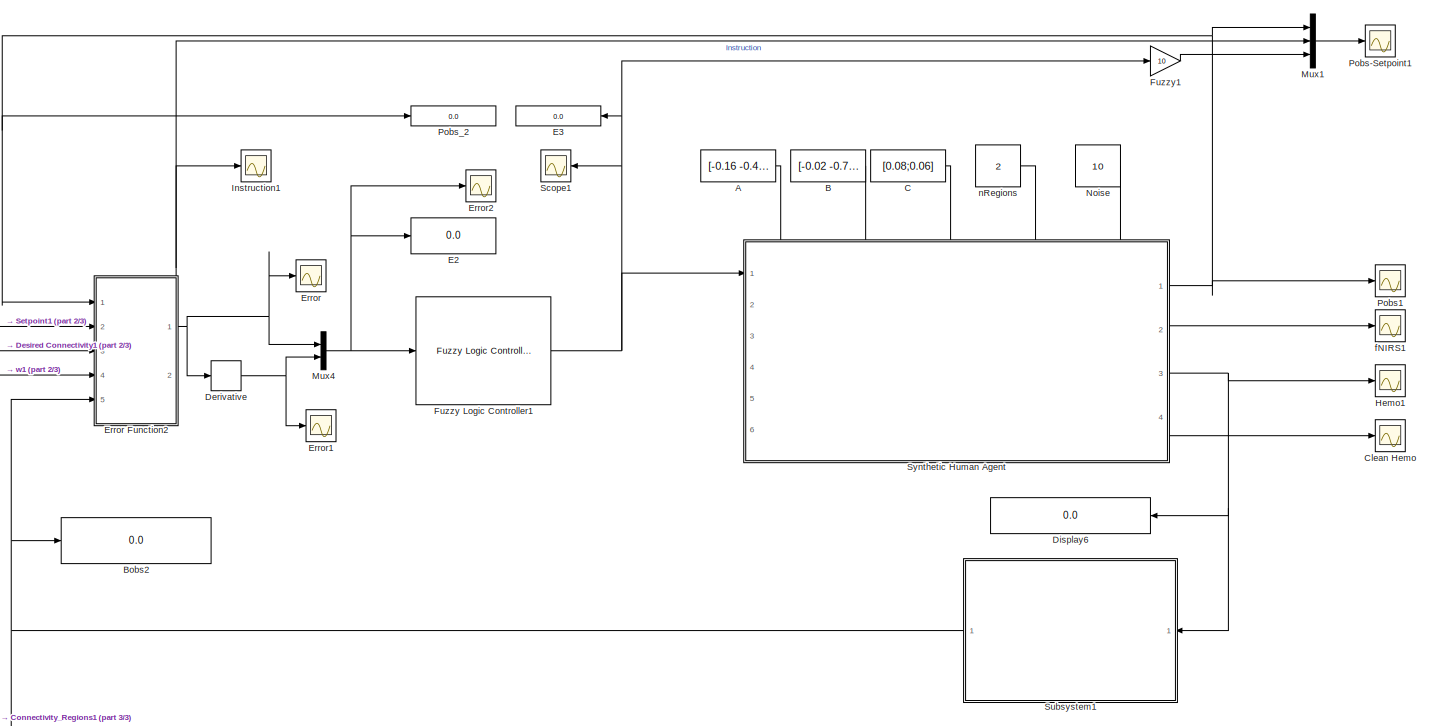
[diagram: root canvas - part 1/3, full width, middle band]
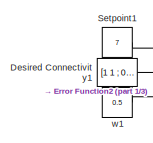
[diagram: root canvas - part 2/3, middle left region]
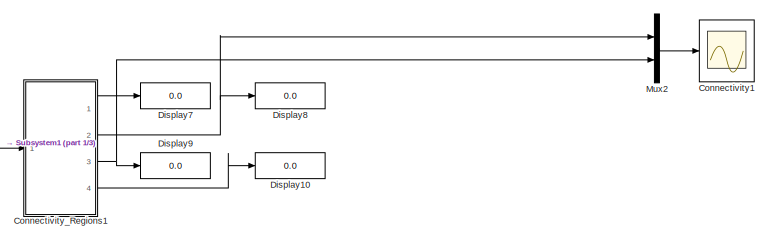
[diagram: root canvas - part 3/3, bottom center region]
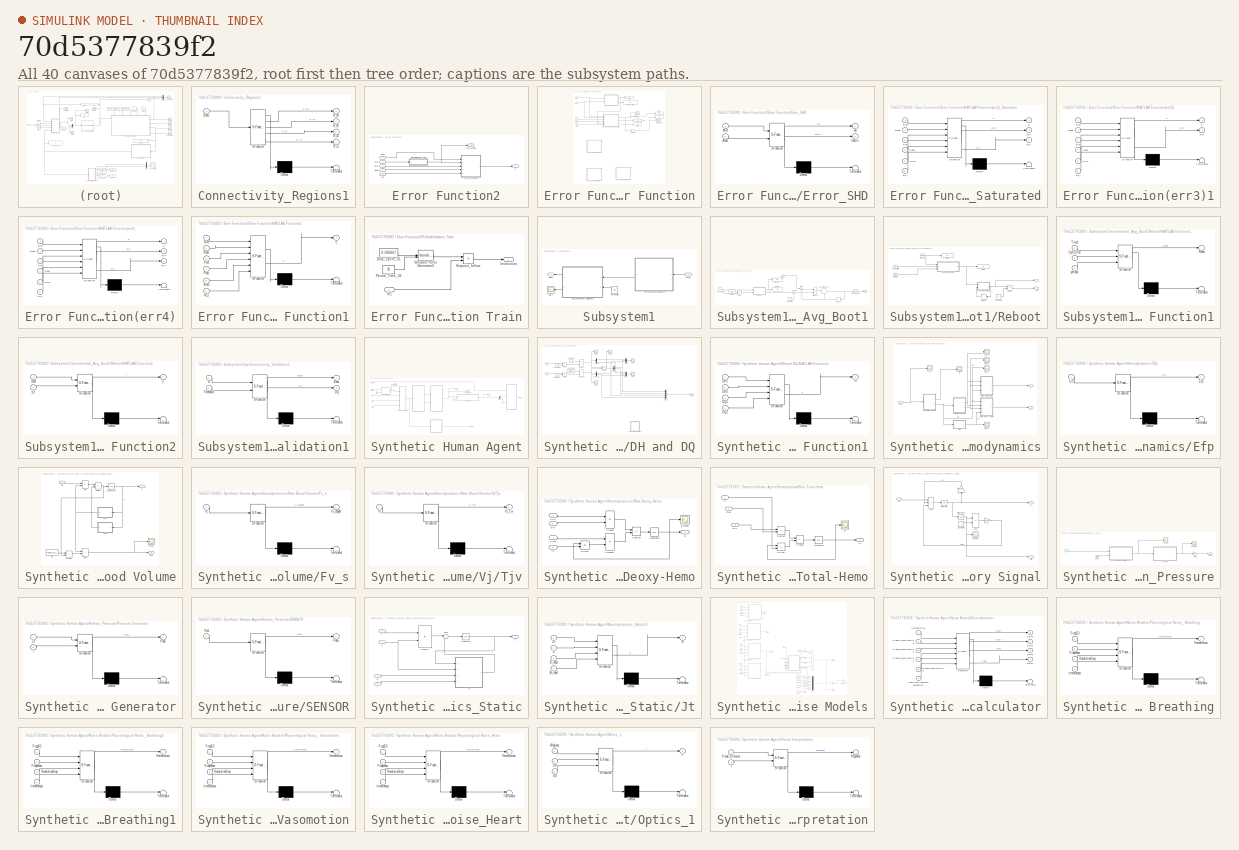
[diagram: thumbnail index - all 40 canvases of the model, root first then tree order]
MODEL slx_70d5377839f2
KIND model
CONFIG AbsTol = auto
CONFIG EnableMultiTasking = off
CONFIG FixedStep = auto
CONFIG MaxStep = 1/10
CONFIG MinStep = auto
CONFIG RelTol = 1e-3
CONFIG SampleTimeConstraint = Unconstrained
CONFIG SolverName = VariableStepAuto
CONFIG StartTime = 0.0
CONFIG StopTime = 60
BLOCK [Constant] A
  Value = [-0.16 -0.49;-0.02 -0.33]
BLOCK [Constant] B
  Value = [-0.02 -0.77; 0.33 -1.31]
BLOCK [Display] Bobs2
  Decimation = 1
  Ports = [1]
BLOCK [Constant] C
  Value = [0.08;0.06]
BLOCK [Scope] Clean Hemo
  Floating = off
  NumInputPorts = 1
  Ports = [1]
  ScopeSpecificationString = Simulink.scopes.TimeScopeBlockCfg('CurrentConfiguration', extmgr.ConfigurationSet(extmgr.Configuration('Core','General UI',true,'FigureColor',[1 1 1]),extmgr.Configuration('Core','Source UI',true),extmgr.Configuration('Sources','WiredSimulink',true,'DataLoggingVariableName','ScopeData6'),extmgr.Configuration('Visuals','Time Domain',true,'SerializedDisplays',{struct('MinYLimReal','-2.03954','MaxYLi...<+1957ch>
BLOCK [Scope] Connectivity1
  Floating = off
  NumInputPorts = 1
  Ports = [1]
  ScopeSpecificationString = Simulink.scopes.TimeScopeBlockCfg('CurrentConfiguration', extmgr.ConfigurationSet(extmgr.Configuration('Core','General UI',true,'FigureColor',[1 1 1]),extmgr.Configuration('Core','Source UI',true),extmgr.Configuration('Sources','WiredSimulink',true,'DataLoggingVariableName','ScopeData9'),extmgr.Configuration('Visuals','Time Domain',true,'SerializedDisplays',{struct('MinYLimReal','-0.125','MaxYLimR...<+2056ch>
BLOCK [SubSystem] Connectivity_Regions1
  ErrorFcn = Stateflow.Translate.translate
  PermitHierarchicalResolution = ExplicitOnly
  Ports = [1, 4]
  RequestExecContextInheritance = off
  SFBlockType = MATLAB Function
  TreatAsAtomicUnit = on
BLOCK [Demux] Connectivity_Regions1/ Demux 
  Outputs = 1
  Ports = [1, 1]
BLOCK [S-Function] Connectivity_Regions1/ SFunction 
  EnableBusSupport = on
  FunctionName = sf_sfun
  PortCounts = [1 5]
  Ports = [1, 5]
  SFcnIsStateOwnerBlock = off
  SFunctionDeploymentMode = off
  Tag = Stateflow S-Function 4
BLOCK [Terminator] Connectivity_Regions1/ Terminator 
BLOCK [Outport] Connectivity_Regions1/B_00
BLOCK [Outport] Connectivity_Regions1/B_01
  Port = 2
BLOCK [Outport] Connectivity_Regions1/B_10
  Port = 3
BLOCK [Outport] Connectivity_Regions1/B_11
  Port = 4
BLOCK [Inport] Connectivity_Regions1/Bobs
BLOCK [Derivative] Derivative
  CoefficientInTFapproximation = 1
BLOCK [Constant] Desired Connectivity1
  NameLocation = left
  Value = [1   1 ; 0 1]
BLOCK [Display] Display10
  Decimation = 1
  Ports = [1]
BLOCK [Display] Display6
  Decimation = 1
  Ports = [1]
BLOCK [Display] Display7
  Decimation = 1
  Ports = [1]
BLOCK [Display] Display8
  Decimation = 1
  Ports = [1]
BLOCK [Display] Display9
  Decimation = 1
  Ports = [1]
BLOCK [Display] E2
  Decimation = 1
  Ports = [1]
BLOCK [Display] E3
  Decimation = 1
  Ports = [1]
BLOCK [Scope] Error
  Floating = off
  NumInputPorts = 1
  Ports = [1]
  ScopeSpecificationString = Simulink.scopes.TimeScopeBlockCfg('CurrentConfiguration', extmgr.ConfigurationSet(extmgr.Configuration('Core','General UI',true,'FigureColor',[1 1 1]),extmgr.Configuration('Core','Source UI',true),extmgr.Configuration('Sources','WiredSimulink',true,'DataLoggingVariableName','ScopeData15'),extmgr.Configuration('Visuals','Time Domain',true,'SerializedDisplays',{struct('MinYLimReal','-0.07812','MaxYL...<+1684ch>
BLOCK [SubSystem] Error Function2
  PortSchema = {"entries":[{"content":{"sides":[{"content":{"connectorIds":["In1","In2","In3","In4","In5"]},"type":"ConnectorPlacement.EquallySpacedRectSide","uuid":"444fbf9f-83f0-405e-b780-73f2a519e5d8"},{"content":{"connectorIds":["Out1"],"side":"RIGHT"},"type":"ConnectorPlacement.EquallySpacedRectSide","uuid":"580feeb9-eb76-4e38-ada2-7c0fba9b3602"},{"content":{"connectorIds":["Out2"],"side":"TOP"},"type":"Con...<+270ch>
  Ports = [5, 2]
  RequestExecContextInheritance = off
BLOCK [Inport] Error Function2/Bobs
  NameLocation = left
  Port = 5
BLOCK [Inport] Error Function2/Bref
  NameLocation = left
  Port = 3
BLOCK [Outport] Error Function2/E
BLOCK [SubSystem] Error Function2/Error Function
  Ports = [5, 1]
  RequestExecContextInheritance = off
BLOCK [Inport] Error Function2/Error Function/Bobs
  Port = 4
BLOCK [Inport] Error Function2/Error Function/Bref
  Port = 3
BLOCK [Derivative] Error Function2/Error Function/Derivative
BLOCK [Display] Error Function2/Error Function/Difference Matrix
  Decimation = 1
  NameLocation = right
  Ports = [1]
BLOCK [Outport] Error Function2/Error Function/E
  NameLocation = right
BLOCK [Display] Error Function2/Error Function/Error
  Decimation = 1
  NameLocation = right
  Ports = [1]
BLOCK [Scope] Error Function2/Error Function/Error Scope
  Floating = off
  NameLocation = right
  NumInputPorts = 1
  Ports = [1]
  ScopeSpecificationString = Simulink.scopes.TimeScopeBlockCfg('CurrentConfiguration', extmgr.ConfigurationSet(extmgr.Configuration('Core','General UI',true),extmgr.Configuration('Core','Source UI',true),extmgr.Configuration('Sources','WiredSimulink',true,'DataLoggingVariableName','ScopeData2'),extmgr.Configuration('Visuals','Time Domain',true,'SerializedDisplays',{struct('MinYLimReal','-0.07812','MaxYLimReal','0.70312','YLab...<+1446ch>
BLOCK [Scope] Error Function2/Error Function/Error Scope1
  Floating = off
  NameLocation = right
  NumInputPorts = 1
  Ports = [1]
  ScopeSpecificationString = Simulink.scopes.TimeScopeBlockCfg('CurrentConfiguration', extmgr.ConfigurationSet(extmgr.Configuration('Core','General UI',true),extmgr.Configuration('Core','Source UI',true),extmgr.Configuration('Sources','WiredSimulink',true,'DataLoggingVariableName','ScopeData1'),extmgr.Configuration('Visuals','Time Domain',true,'SerializedDisplays',{struct('MinYLimReal','-5.39329','MaxYLimReal','6.06646','YLab...<+1424ch>
BLOCK [Display] Error Function2/Error Function/Error1
  Decimation = 1
  NameLocation = right
  Ports = [1]
BLOCK [Display] Error Function2/Error Function/Error2
  Decimation = 1
  NameLocation = right
  Ports = [1]
BLOCK [SubSystem] Error Function2/Error Function/Error_SHD
  ErrorFcn = Stateflow.Translate.translate
  PermitHierarchicalResolution = ExplicitOnly
  Ports = [2, 2]
  RequestExecContextInheritance = off
  SFBlockType = MATLAB Function
  TreatAsAtomicUnit = on
BLOCK [Demux] Error Function2/Error Function/Error_SHD/ Demux 
  Outputs = 1
  Ports = [1, 1]
BLOCK [S-Function] Error Function2/Error Function/Error_SHD/ SFunction 
  EnableBusSupport = on
  FunctionName = sf_sfun
  PortCounts = [2 3]
  Ports = [2, 3]
  SFcnIsStateOwnerBlock = off
  SFunctionDeploymentMode = off
  Tag = Stateflow S-Function 6
BLOCK [Terminator] Error Function2/Error Function/Error_SHD/ Terminator 
BLOCK [Inport] Error Function2/Error Function/Error_SHD/Aobs
  Port = 2
BLOCK [Inport] Error Function2/Error Function/Error_SHD/Aref
BLOCK [Outport] Error Function2/Error Function/Error_SHD/matrix
  Port = 2
BLOCK [Outport] Error Function2/Error Function/Error_SHD/val
BLOCK [SubSystem] Error Function2/Error Function/MATLAB Function(err2)_Saturated
  ErrorFcn = Stateflow.Translate.translate
  PermitHierarchicalResolution = ExplicitOnly
  Ports = [6, 3]
  RequestExecContextInheritance = off
  SFBlockType = MATLAB Function
  TreatAsAtomicUnit = on
BLOCK [Demux] Error Function2/Error Function/MATLAB Function(err2)_Saturated/ Demux 
  Outputs = 1
  Ports = [1, 1]
BLOCK [S-Function] Error Function2/Error Function/MATLAB Function(err2)_Saturated/ SFunction 
  EnableBusSupport = on
  FunctionName = sf_sfun
  PortCounts = [6 4]
  Ports = [6, 4]
  SFcnIsStateOwnerBlock = off
  SFunctionDeploymentMode = off
  Tag = Stateflow S-Function 3
BLOCK [Terminator] Error Function2/Error Function/MATLAB Function(err2)_Saturated/ Terminator 
BLOCK [Inport] Error Function2/Error Function/MATLAB Function(err2)_Saturated/Bobs
  Port = 2
BLOCK [Inport] Error Function2/Error Function/MATLAB Function(err2)_Saturated/Bref
BLOCK [Outport] Error Function2/Error Function/MATLAB Function(err2)_Saturated/E
BLOCK [Inport] Error Function2/Error Function/MATLAB Function(err2)_Saturated/Pobs
  Port = 4
BLOCK [Inport] Error Function2/Error Function/MATLAB Function(err2)_Saturated/Pref
  Port = 3
BLOCK [Inport] Error Function2/Error Function/MATLAB Function(err2)_Saturated/SHD
  Port = 5
BLOCK [Outport] Error Function2/Error Function/MATLAB Function(err2)_Saturated/errA
  Port = 3
BLOCK [Outport] Error Function2/Error Function/MATLAB Function(err2)_Saturated/errP
  Port = 2
BLOCK [Inport] Error Function2/Error Function/MATLAB Function(err2)_Saturated/w1_l
  Port = 6
BLOCK [SubSystem] Error Function2/Error Function/MATLAB Function(err3)1
  Commented = on
  ErrorFcn = Stateflow.Translate.translate
  PermitHierarchicalResolution = ExplicitOnly
  Ports = [6, 2]
  RequestExecContextInheritance = off
  SFBlockType = MATLAB Function
  TreatAsAtomicUnit = on
BLOCK [Demux] Error Function2/Error Function/MATLAB Function(err3)1/ Demux 
  Outputs = 1
  Ports = [1, 1]
BLOCK [S-Function] Error Function2/Error Function/MATLAB Function(err3)1/ SFunction 
  EnableBusSupport = on
  FunctionName = sf_sfun
  PortCounts = [6 3]
  Ports = [6, 3]
  SFcnIsStateOwnerBlock = off
  SFunctionDeploymentMode = off
  Tag = Stateflow S-Function 1
BLOCK [Terminator] Error Function2/Error Function/MATLAB Function(err3)1/ Terminator 
BLOCK [Inport] Error Function2/Error Function/MATLAB Function(err3)1/Bobs
  Port = 2
BLOCK [Inport] Error Function2/Error Function/MATLAB Function(err3)1/Bref
BLOCK [Outport] Error Function2/Error Function/MATLAB Function(err3)1/E
BLOCK [Inport] Error Function2/Error Function/MATLAB Function(err3)1/Pobs
  Port = 4
BLOCK [Inport] Error Function2/Error Function/MATLAB Function(err3)1/Pref
  Port = 3
BLOCK [Inport] Error Function2/Error Function/MATLAB Function(err3)1/SHD
  Port = 5
BLOCK [Outport] Error Function2/Error Function/MATLAB Function(err3)1/errP
  Port = 2
BLOCK [Inport] Error Function2/Error Function/MATLAB Function(err3)1/w1_l
  Port = 6
BLOCK [SubSystem] Error Function2/Error Function/MATLAB Function(err4)
  Commented = on
  ErrorFcn = Stateflow.Translate.translate
  PermitHierarchicalResolution = ExplicitOnly
  Ports = [6, 3]
  RequestExecContextInheritance = off
  SFBlockType = MATLAB Function
  TreatAsAtomicUnit = on
BLOCK [Demux] Error Function2/Error Function/MATLAB Function(err4)/ Demux 
  Outputs = 1
  Ports = [1, 1]
BLOCK [S-Function] Error Function2/Error Function/MATLAB Function(err4)/ SFunction 
  EnableBusSupport = on
  FunctionName = sf_sfun
  PortCounts = [6 4]
  Ports = [6, 4]
  SFcnIsStateOwnerBlock = off
  SFunctionDeploymentMode = off
  Tag = Stateflow S-Function 2
BLOCK [Terminator] Error Function2/Error Function/MATLAB Function(err4)/ Terminator 
BLOCK [Inport] Error Function2/Error Function/MATLAB Function(err4)/Bobs
  Port = 2
BLOCK [Inport] Error Function2/Error Function/MATLAB Function(err4)/Bref
BLOCK [Outport] Error Function2/Error Function/MATLAB Function(err4)/E
BLOCK [Inport] Error Function2/Error Function/MATLAB Function(err4)/Pobs
  Port = 4
BLOCK [Inport] Error Function2/Error Function/MATLAB Function(err4)/Pref
  Port = 3
BLOCK [Inport] Error Function2/Error Function/MATLAB Function(err4)/SHD
  Port = 5
BLOCK [Outport] Error Function2/Error Function/MATLAB Function(err4)/errA
  Port = 3
BLOCK [Outport] Error Function2/Error Function/MATLAB Function(err4)/errP
  Port = 2
BLOCK [Inport] Error Function2/Error Function/MATLAB Function(err4)/w1_l
  Port = 6
BLOCK [SubSystem] Error Function2/Error Function/MATLAB Function1
  Commented = on
  ErrorFcn = Stateflow.Translate.translate
  PermitHierarchicalResolution = ExplicitOnly
  Ports = [6, 1]
  RequestExecContextInheritance = off
  SFBlockType = MATLAB Function
  TreatAsAtomicUnit = on
BLOCK [Demux] Error Function2/Error Function/MATLAB Function1/ Demux 
  Outputs = 1
  Ports = [1, 1]
BLOCK [S-Function] Error Function2/Error Function/MATLAB Function1/ SFunction 
  EnableBusSupport = on
  FunctionName = sf_sfun
  PortCounts = [6 2]
  Ports = [6, 2]
  SFcnIsStateOwnerBlock = off
  SFunctionDeploymentMode = off
  Tag = Stateflow S-Function 8
BLOCK [Terminator] Error Function2/Error Function/MATLAB Function1/ Terminator 
BLOCK [Inport] Error Function2/Error Function/MATLAB Function1/Bobs
  Port = 2
BLOCK [Inport] Error Function2/Error Function/MATLAB Function1/Bref
BLOCK [Outport] Error Function2/Error Function/MATLAB Function1/E
BLOCK [Inport] Error Function2/Error Function/MATLAB Function1/Pobs
  Port = 4
BLOCK [Inport] Error Function2/Error Function/MATLAB Function1/Pref
  Port = 3
BLOCK [Inport] Error Function2/Error Function/MATLAB Function1/SHD
  Port = 5
BLOCK [Inport] Error Function2/Error Function/MATLAB Function1/w1_l
  Port = 6
BLOCK [Inport] Error Function2/Error Function/Pobs
  NameLocation = left
BLOCK [Inport] Error Function2/Error Function/Pref
  NameLocation = left
  Port = 2
BLOCK [Display] Error Function2/Error Function/SHD
  Decimation = 1
  NameLocation = right
  Ports = [1]
BLOCK [Inport] Error Function2/Error Function/W1
  NameLocation = left
  Port = 5
BLOCK [Display] Error Function2/Error Function/dError
  Decimation = 1
  NameLocation = right
  Ports = [1]
BLOCK [Outport] Error Function2/Instruction
  Port = 2
BLOCK [Inport] Error Function2/Pobs
  NameLocation = left
BLOCK [Inport] Error Function2/Pref
  NameLocation = left
  Port = 2
BLOCK [SubSystem] Error Function2/Rehabilitation Train
  NameLocation = top
  Ports = [1, 1]
  RequestExecContextInheritance = off
BLOCK [Constant] Error Function2/Rehabilitation Train/Duty_Cycle_U1
  OutMax = [0.8]
  OutMin = [0]
  Value = 0.166667
BLOCK [Inport] Error Function2/Rehabilitation Train/In1
BLOCK [Outport] Error Function2/Rehabilitation Train/Instruction
BLOCK [Constant] Error Function2/Rehabilitation Train/Period_Time_U1
  Value = 30
BLOCK [Product] Error Function2/Rehabilitation Train/Setpoint_follow
  Ports = [2, 1]
BLOCK [VariablePulseGenerator] Error Function2/Rehabilitation Train/Variable Pulse Generator2
  AllowZeroPulseWidth = on
  NameLocation = left
  RunAtFixedTimeIntervals = on
  SampleTime = 1/10
BLOCK [Inport] Error Function2/W1
  NameLocation = left
  Port = 4
BLOCK [Scope] Error1
  Floating = off
  NumInputPorts = 1
  Ports = [1]
  ScopeSpecificationString = Simulink.scopes.TimeScopeBlockCfg('CurrentConfiguration', extmgr.ConfigurationSet(extmgr.Configuration('Core','General UI',true,'FigureColor',[0 0 0]),extmgr.Configuration('Core','Source UI',true),extmgr.Configuration('Sources','WiredSimulink',true,'DataLoggingVariableName','ScopeData1'),extmgr.Configuration('Visuals','Time Domain',true,'SerializedDisplays',{struct('MinYLimReal','-6.40625','MaxYLi...<+1681ch>
BLOCK [Scope] Error2
  Floating = off
  NumInputPorts = 1
  Ports = [1]
  ScopeSpecificationString = Simulink.scopes.TimeScopeBlockCfg('CurrentConfiguration', extmgr.ConfigurationSet(extmgr.Configuration('Core','General UI',true,'FigureColor',[1 1 1]),extmgr.Configuration('Core','Source UI',true),extmgr.Configuration('Sources','WiredSimulink',true,'DataLoggingVariableName','ScopeData1'),extmgr.Configuration('Visuals','Time Domain',true,'SerializedDisplays',{struct('MinYLimReal','-6.40625','MaxYLi...<+1715ch>
BLOCK [Reference] Fuzzy Logic Controller1  REF=fuzblock/Fuzzy Logic   (lib defined in mdl_858b3b3e7478)
Controller
  Ports = [1, 1]
  SourceBlock = fuzblock/Fuzzy Logic \nController
  SourceProductBaseCode = FL
  SourceType = Fuzzy Inference System
BLOCK [Gain] Fuzzy1
  Gain = 10
BLOCK [Scope] Hemo1
  Floating = off
  NumInputPorts = 1
  Ports = [1]
  ScopeSpecificationString = Simulink.scopes.TimeScopeBlockCfg('CurrentConfiguration', extmgr.ConfigurationSet(extmgr.Configuration('Core','General UI',true,'FigureColor',[1 1 1]),extmgr.Configuration('Core','Source UI',true),extmgr.Configuration('Sources','WiredSimulink',true,'DataLoggingVariableName','ScopeData10'),extmgr.Configuration('Visuals','Time Domain',true,'SerializedDisplays',{struct('MinYLimReal','-114.07074','Max...<+1995ch>
BLOCK [Scope] Instruction1
  Floating = off
  NumInputPorts = 1
  Ports = [1]
  ScopeSpecificationString = Simulink.scopes.TimeScopeBlockCfg('CurrentConfiguration', extmgr.ConfigurationSet(extmgr.Configuration('Core','General UI',true),extmgr.Configuration('Core','Source UI',true),extmgr.Configuration('Sources','WiredSimulink',true,'DataLoggingVariableName','ScopeData11'),extmgr.Configuration('Visuals','Time Domain',true,'SerializedDisplays',{struct('MinYLimReal','-0.75','MaxYLimReal','6.75','YLabelRea...<+1414ch>
BLOCK [Mux] Mux1
  DisplayOption = bar
  Inputs = 3
  Ports = [3, 1]
BLOCK [Mux] Mux2
  DisplayOption = bar
  Inputs = 2
  Ports = [2, 1]
BLOCK [Mux] Mux4
  DisplayOption = bar
  Inputs = 2
  Ports = [2, 1]
BLOCK [Constant] Noise
  Value = 10
BLOCK [Scope] Pobs-Setpoint1
  Floating = off
  NumInputPorts = 1
  Ports = [1]
  ScopeSpecificationString = Simulink.scopes.TimeScopeBlockCfg('CurrentConfiguration', extmgr.ConfigurationSet(extmgr.Configuration('Core','General UI',true,'FigureColor',[1 1 1]),extmgr.Configuration('Core','Source UI',true),extmgr.Configuration('Sources','WiredSimulink',true,'DataLoggingVariableName','ScopeData12'),extmgr.Configuration('Visuals','Time Domain',true,'SerializedDisplays',{struct('MinYLimReal','-0.98451','MaxYL...<+1869ch>
BLOCK [Scope] Pobs1
  Floating = off
  NumInputPorts = 1
  Ports = [1]
  ScopeSpecificationString = Simulink.scopes.TimeScopeBlockCfg('CurrentConfiguration', extmgr.ConfigurationSet(extmgr.Configuration('Core','General UI',true,'FigureColor',[0 0 0]),extmgr.Configuration('Core','Source UI',true),extmgr.Configuration('Sources','WiredSimulink',true,'DataLoggingVariableName','ScopeData13'),extmgr.Configuration('Visuals','Time Domain',true,'SerializedDisplays',{struct('MinYLimReal','-0.98451','MaxYL...<+2298ch>
BLOCK [Display] Pobs_2
  Decimation = 1
  Ports = [1]
BLOCK [Scope] Scope1
  Floating = off
  NumInputPorts = 1
  Ports = [1]
  ScopeSpecificationString = Simulink.scopes.TimeScopeBlockCfg('CurrentConfiguration', extmgr.ConfigurationSet(extmgr.Configuration('Core','General UI',true),extmgr.Configuration('Core','Source UI',true),extmgr.Configuration('Sources','WiredSimulink',true,'DataLoggingVariableName','ScopeData14'),extmgr.Configuration('Visuals','Time Domain',true,'SerializedDisplays',{struct('MinYLimReal','-0.0425','MaxYLimReal','0.8325','YLabe...<+1534ch>
BLOCK [Constant] Setpoint1
  NameLocation = left
  Value = 7
BLOCK [SubSystem] Subsystem1
  Ports = [1, 1]
  RequestExecContextInheritance = off
BLOCK [Outport] Subsystem1/Bobs
BLOCK [Scope] Subsystem1/DQ1
  Floating = off
  NumInputPorts = 1
  Ports = [1]
  ScopeSpecificationString = Simulink.scopes.TimeScopeBlockCfg('CurrentConfiguration', extmgr.ConfigurationSet(extmgr.Configuration('Core','General UI',true,'FigureColor',[1 1 1]),extmgr.Configuration('Core','Source UI',true),extmgr.Configuration('Sources','WiredSimulink',true,'DataLoggingVariableName','ScopeData5'),extmgr.Configuration('Visuals','Time Domain',true,'SerializedDisplays',{struct('MinYLimReal','-1.38099','MaxYLi...<+1746ch>
BLOCK [SubSystem] Subsystem1/Incremental_Avg_Boot1
  Ports = [1, 1]
  RequestExecContextInheritance = off
BLOCK [Constant] Subsystem1/Incremental_Avg_Boot1/Constant1
BLOCK [Constant] Subsystem1/Incremental_Avg_Boot1/Constant6
  Value = 30
BLOCK [Outport] Subsystem1/Incremental_Avg_Boot1/D 
BLOCK [Delay] Subsystem1/Incremental_Avg_Boot1/Delay1
  DelayLength = 1
  InitialCondition = [0 0 0 0]
  InputPortMap = u0
  Ports = [1, 1]
BLOCK [Display] Subsystem1/Incremental_Avg_Boot1/Display
  Decimation = 1
  Ports = [1]
BLOCK [Display] Subsystem1/Incremental_Avg_Boot1/Display1
  Decimation = 1
  Ports = [1]
BLOCK [Product] Subsystem1/Incremental_Avg_Boot1/Divide
  Inputs = */
  Ports = [2, 1]
BLOCK [Sum] Subsystem1/Incremental_Avg_Boot1/Qk + (R-Qk // K+1) 
  Inputs = |++
  NameLocation = top
  Ports = [2, 1]
BLOCK [Sum] Subsystem1/Incremental_Avg_Boot1/R-Qk
  Inputs = |+-
  NameLocation = top
  Ports = [2, 1]
BLOCK [Product] Subsystem1/Incremental_Avg_Boot1/R-Qk // K+1
  Inputs = */
  Ports = [2, 1]
BLOCK [SubSystem] Subsystem1/Incremental_Avg_Boot1/Reboot
  Ports = [2, 2]
  RequestExecContextInheritance = off
BLOCK [Clock] Subsystem1/Incremental_Avg_Boot1/Reboot/Clock1
BLOCK [Constant] Subsystem1/Incremental_Avg_Boot1/Reboot/Constant1
BLOCK [Inport] Subsystem1/Incremental_Avg_Boot1/Reboot/Cycle_time
BLOCK [Delay] Subsystem1/Incremental_Avg_Boot1/Reboot/Delay1
  DelayLength = 1
  InputPortMap = u0
  Ports = [1, 1]
BLOCK [Product] Subsystem1/Incremental_Avg_Boot1/Reboot/Divide
  Inputs = */
  Ports = [2, 1]
BLOCK [SubSystem] Subsystem1/Incremental_Avg_Boot1/Reboot/MATLAB Function1
  ErrorFcn = Stateflow.Translate.translate
  PermitHierarchicalResolution = ExplicitOnly
  Ports = [3, 1]
  RequestExecContextInheritance = off
  SFBlockType = MATLAB Function
  TreatAsAtomicUnit = on
BLOCK [Demux] Subsystem1/Incremental_Avg_Boot1/Reboot/MATLAB Function1/ Demux 
  Outputs = 1
  Ports = [1, 1]
BLOCK [S-Function] Subsystem1/Incremental_Avg_Boot1/Reboot/MATLAB Function1/ SFunction 
  EnableBusSupport = on
  FunctionName = sf_sfun
  PortCounts = [3 2]
  Ports = [3, 2]
  SFcnIsStateOwnerBlock = off
  SFunctionDeploymentMode = off
  Tag = Stateflow S-Function 10
BLOCK [Terminator] Subsystem1/Incremental_Avg_Boot1/Reboot/MATLAB Function1/ Terminator 
BLOCK [Inport] Subsystem1/Incremental_Avg_Boot1/Reboot/MATLAB Function1/Cycle_time
  Port = 2
BLOCK [Outport] Subsystem1/Incremental_Avg_Boot1/Reboot/MATLAB Function1/Reset
BLOCK [Inport] Subsystem1/Incremental_Avg_Boot1/Reboot/MATLAB Function1/Timer
BLOCK [Inport] Subsystem1/Incremental_Avg_Boot1/Reboot/MATLAB Function1/periods
  Port = 3
BLOCK [SubSystem] Subsystem1/Incremental_Avg_Boot1/Reboot/MATLAB Function2
  ErrorFcn = Stateflow.Translate.translate
  PermitHierarchicalResolution = ExplicitOnly
  Ports = [2, 1]
  RequestExecContextInheritance = off
  SFBlockType = MATLAB Function
  TreatAsAtomicUnit = on
BLOCK [Demux] Subsystem1/Incremental_Avg_Boot1/Reboot/MATLAB Function2/ Demux 
  Outputs = 1
  Ports = [1, 1]
BLOCK [S-Function] Subsystem1/Incremental_Avg_Boot1/Reboot/MATLAB Function2/ SFunction 
  EnableBusSupport = on
  FunctionName = sf_sfun
  PortCounts = [2 2]
  Ports = [2, 2]
  SFcnIsStateOwnerBlock = off
  SFunctionDeploymentMode = off
  Tag = Stateflow S-Function 13
BLOCK [Terminator] Subsystem1/Incremental_Avg_Boot1/Reboot/MATLAB Function2/ Terminator 
BLOCK [Inport] Subsystem1/Incremental_Avg_Boot1/Reboot/MATLAB Function2/reset
BLOCK [Outport] Subsystem1/Incremental_Avg_Boot1/Reboot/MATLAB Function2/y
BLOCK [Inport] Subsystem1/Incremental_Avg_Boot1/Reboot/MATLAB Function2/y_s
  Port = 2
BLOCK [Outport] Subsystem1/Incremental_Avg_Boot1/Reboot/Time
  Port = 2
BLOCK [Display] Subsystem1/Incremental_Avg_Boot1/Reboot/Timer
  Decimation = 1
  Ports = [1]
BLOCK [Display] Subsystem1/Incremental_Avg_Boot1/Reboot/Timer1
  Decimation = 1
  Ports = [1]
BLOCK [Inport] Subsystem1/Incremental_Avg_Boot1/Reboot/periods
  Port = 2
BLOCK [Outport] Subsystem1/Incremental_Avg_Boot1/Reboot/y
BLOCK [Constant] Subsystem1/Incremental_Avg_Boot1/Stop time
  Value = 300
BLOCK [Sum] Subsystem1/Incremental_Avg_Boot1/Sum2
  Inputs = |++
  Ports = [2, 1]
BLOCK [Math] Subsystem1/Incremental_Avg_Boot1/Transpose2
  Operator = transpose
  Ports = [1, 1]
BLOCK [Inport] Subsystem1/Incremental_Avg_Boot1/fNIRS
BLOCK [Constant] Subsystem1/Threshold
  Value = 0.6
BLOCK [Inport] Subsystem1/fNIRS
BLOCK [SubSystem] Subsystem1/getConnectivity_Validation1
  ErrorFcn = Stateflow.Translate.translate
  PermitHierarchicalResolution = ExplicitOnly
  Ports = [2, 2]
  RequestExecContextInheritance = off
  SFBlockType = MATLAB Function
  SystemSampleTime = 0
  TreatAsAtomicUnit = on
BLOCK [Demux] Subsystem1/getConnectivity_Validation1/ Demux 
  Outputs = 1
  Ports = [1, 1]
BLOCK [S-Function] Subsystem1/getConnectivity_Validation1/ SFunction 
  EnableBusSupport = on
  FunctionName = sf_sfun
  PortCounts = [2 3]
  Ports = [2, 3]
  SFcnIsStateOwnerBlock = off
  SFunctionDeploymentMode = off
  Tag = Stateflow S-Function 14
BLOCK [Terminator] Subsystem1/getConnectivity_Validation1/ Terminator 
BLOCK [Outport] Subsystem1/getConnectivity_Validation1/Bobs
BLOCK [Inport] Subsystem1/getConnectivity_Validation1/D 
BLOCK [Outport] Subsystem1/getConnectivity_Validation1/DQ
  Port = 2
BLOCK [Inport] Subsystem1/getConnectivity_Validation1/Threshold
  Port = 2
BLOCK [SubSystem] Synthetic Human Agent
  PortSchema = {"entries":[{"content":{"sides":[{"content":{"connectorIds":["In1"]},"type":"ConnectorPlacement.EquallySpacedRectSide","uuid":"bfbcc5e8-6241-430f-b542-d1842988c81e"},{"content":{"connectorIds":["Out1","Out2","Out3","Out4"],"side":"RIGHT"},"type":"ConnectorPlacement.EquallySpacedRectSide","uuid":"5787ae13-1686-4c0f-bd71-92bd424cb6c3"},{"content":{"connectorIds":["In2","In3","In4","In5","In6"],"side...<+290ch>
  Ports = [6, 4]
  RequestExecContextInheritance = off
BLOCK [Inport] Synthetic Human Agent/A
  Port = 2
BLOCK [Inport] Synthetic Human Agent/B
  Port = 3
BLOCK [Inport] Synthetic Human Agent/C
  Port = 4
BLOCK [Outport] Synthetic Human Agent/Clean
  Port = 4
BLOCK [Clock] Synthetic Human Agent/Clock
BLOCK [SubSystem] Synthetic Human Agent/DH and DQ
  Ports = [2, 1]
  RequestExecContextInheritance = off
BLOCK [Constant] Synthetic Human Agent/DH and DQ/Constant
BLOCK [Constant] Synthetic Human Agent/DH and DQ/Constant1
BLOCK [Constant] Synthetic Human Agent/DH and DQ/Constant2
  Value = 71
BLOCK [Constant] Synthetic Human Agent/DH and DQ/Constant3
  Value = 71*(1 - 0.65)
BLOCK [Scope] Synthetic Human Agent/DH and DQ/D-H
  Floating = off
  NumInputPorts = 1
  Ports = [1]
  ScopeSpecificationString = Simulink.scopes.TimeScopeBlockCfg('CurrentConfiguration', extmgr.ConfigurationSet(extmgr.Configuration('Core','General UI',true),extmgr.Configuration('Core','Source UI',true),extmgr.Configuration('Sources','WiredSimulink',true,'DataLoggingVariableName','ScopeData7'),extmgr.Configuration('Visuals','Time Domain',true,'SerializedDisplays',{struct('MinYLimReal','-2.91276','MaxYLimReal','17.16126','YLa...<+1449ch>
BLOCK [Scope] Synthetic Human Agent/DH and DQ/D-P
  Floating = off
  NumInputPorts = 1
  Ports = [1]
  ScopeSpecificationString = Simulink.scopes.TimeScopeBlockCfg('CurrentConfiguration', extmgr.ConfigurationSet(extmgr.Configuration('Core','General UI',true),extmgr.Configuration('Core','Source UI',true),extmgr.Configuration('Sources','WiredSimulink',true,'DataLoggingVariableName','ScopeData5'),extmgr.Configuration('Visuals','Time Domain',true,'SerializedDisplays',{struct('MinYLimReal','-2.54989','MaxYLimReal','15.75385','YLa...<+1449ch>
BLOCK [Scope] Synthetic Human Agent/DH and DQ/D-Q
  Floating = off
  NumInputPorts = 1
  Ports = [1]
  ScopeSpecificationString = Simulink.scopes.TimeScopeBlockCfg('CurrentConfiguration', extmgr.ConfigurationSet(extmgr.Configuration('Core','General UI',true),extmgr.Configuration('Core','Source UI',true),extmgr.Configuration('Sources','WiredSimulink',true,'DataLoggingVariableName','ScopeData6'),extmgr.Configuration('Visuals','Time Domain',true,'SerializedDisplays',{struct('MinYLimReal','-1.63975','MaxYLimReal','0.38869','YLab...<+1447ch>
BLOCK [Sum] Synthetic Human Agent/DH and DQ/Delta-H
  IconShape = rectangular
  Inputs = +-
  Ports = [2, 1]
BLOCK [Sum] Synthetic Human Agent/DH and DQ/Delta-P
  IconShape = rectangular
  Inputs = +-
  Ports = [2, 1]
BLOCK [Sum] Synthetic Human Agent/DH and DQ/Delta-Q
  IconShape = rectangular
  Inputs = +-
  Ports = [2, 1]
BLOCK [Demux] Synthetic Human Agent/DH and DQ/Demux
  Outputs = 2
  Ports = [1, 2]
BLOCK [Demux] Synthetic Human Agent/DH and DQ/Demux1
  Outputs = 2
  Ports = [1, 2]
BLOCK [Demux] Synthetic Human Agent/DH and DQ/Demux2
  Outputs = 2
  Ports = [1, 2]
BLOCK [Outport] Synthetic Human Agent/DH and DQ/Hemo
BLOCK [Scope] Synthetic Human Agent/DH and DQ/M1
  Floating = off
  NumInputPorts = 1
  Ports = [1]
  ScopeSpecificationString = Simulink.scopes.TimeScopeBlockCfg('CurrentConfiguration', extmgr.ConfigurationSet(extmgr.Configuration('Core','General UI',true),extmgr.Configuration('Core','Source UI',true),extmgr.Configuration('Sources','WiredSimulink',true,'DataLoggingVariableName','ScopeData8'),extmgr.Configuration('Visuals','Time Domain',true,'SerializedDisplays',{struct('MinYLimReal','-2.54514','MaxYLimReal','8.43627','YLab...<+1735ch>
BLOCK [SubSystem] Synthetic Human Agent/DH and DQ/MATLAB Function1
  Commented = on
  ErrorFcn = Stateflow.Translate.translate
  PermitHierarchicalResolution = ExplicitOnly
  Ports = [4, 1]
  RequestExecContextInheritance = off
  SFBlockType = MATLAB Function
  TreatAsAtomicUnit = on
BLOCK [Demux] Synthetic Human Agent/DH and DQ/MATLAB Function1/ Demux 
  Outputs = 1
  Ports = [1, 1]
BLOCK [S-Function] Synthetic Human Agent/DH and DQ/MATLAB Function1/ SFunction 
  EnableBusSupport = on
  FunctionName = sf_sfun
  PortCounts = [4 2]
  Ports = [4, 2]
  SFcnIsStateOwnerBlock = off
  SFunctionDeploymentMode = off
  Tag = Stateflow S-Function 5
BLOCK [Terminator] Synthetic Human Agent/DH and DQ/MATLAB Function1/ Terminator 
BLOCK [Inport] Synthetic Human Agent/DH and DQ/MATLAB Function1/DH1
BLOCK [Inport] Synthetic Human Agent/DH and DQ/MATLAB Function1/DH2
  Port = 2
BLOCK [Inport] Synthetic Human Agent/DH and DQ/MATLAB Function1/DQ1
  Port = 3
BLOCK [Inport] Synthetic Human Agent/DH and DQ/MATLAB Function1/DQ2
  Port = 4
BLOCK [Outport] Synthetic Human Agent/DH and DQ/MATLAB Function1/H
BLOCK [Mux] Synthetic Human Agent/DH and DQ/Mux
  DisplayOption = bar
  Inputs = 3
  Ports = [3, 1]
BLOCK [Mux] Synthetic Human Agent/DH and DQ/Mux1
  DisplayOption = bar
  Inputs = 3
  Ports = [3, 1]
BLOCK [Mux] Synthetic Human Agent/DH and DQ/Mux2
  DisplayOption = bar
  Ports = [4, 1]
BLOCK [Product] Synthetic Human Agent/DH and DQ/Product
  Ports = [2, 1]
BLOCK [Product] Synthetic Human Agent/DH and DQ/Product1
  Ports = [2, 1]
BLOCK [Scope] Synthetic Human Agent/DH and DQ/SMA
  Floating = off
  NumInputPorts = 1
  Ports = [1]
  ScopeSpecificationString = Simulink.scopes.TimeScopeBlockCfg('CurrentConfiguration', extmgr.ConfigurationSet(extmgr.Configuration('Core','General UI',true),extmgr.Configuration('Core','Source UI',true),extmgr.Configuration('Sources','WiredSimulink',true,'DataLoggingVariableName','ScopeData9'),extmgr.Configuration('Visuals','Time Domain',true,'SerializedDisplays',{struct('MinYLimReal','-3.33791','MaxYLimReal','17.25675','YLa...<+1774ch>
BLOCK [Inport] Synthetic Human Agent/DH and DQ/pj
BLOCK [Inport] Synthetic Human Agent/DH and DQ/qj
  Port = 2
BLOCK [Demux] Synthetic Human Agent/Demux
  Outputs = 2
  Ports = [1, 2]
BLOCK [Outport] Synthetic Human Agent/Hemo
  Port = 3
BLOCK [SubSystem] Synthetic Human Agent/Hemodynamics
  Ports = [1, 2]
  RequestExecContextInheritance = off
BLOCK [SubSystem] Synthetic Human Agent/Hemodynamics/Efp
  ErrorFcn = Stateflow.Translate.translate
  PermitHierarchicalResolution = ExplicitOnly
  Ports = [1, 1]
  RequestExecContextInheritance = off
  SFBlockType = MATLAB Function
  TreatAsAtomicUnit = on
BLOCK [Demux] Synthetic Human Agent/Hemodynamics/Efp/ Demux 
  Outputs = 1
  Ports = [1, 1]
BLOCK [S-Function] Synthetic Human Agent/Hemodynamics/Efp/ SFunction 
  EnableBusSupport = on
  FunctionName = sf_sfun
  PortCounts = [1 2]
  Ports = [1, 2]
  SFcnIsStateOwnerBlock = off
  SFunctionDeploymentMode = off
  Tag = Stateflow S-Function 7
BLOCK [Terminator] Synthetic Human Agent/Hemodynamics/Efp/ Terminator 
BLOCK [Outport] Synthetic Human Agent/Hemodynamics/Efp/Efp
BLOCK [Inport] Synthetic Human Agent/Hemodynamics/Efp/fjin
BLOCK [Scope] Synthetic Human Agent/Hemodynamics/Efp_1
  Floating = off
  NumInputPorts = 1
  Ports = [1]
  ScopeSpecificationString = Simulink.scopes.TimeScopeBlockCfg('CurrentConfiguration', extmgr.ConfigurationSet(extmgr.Configuration('Core','General UI',true),extmgr.Configuration('Core','Source UI',true),extmgr.Configuration('Sources','WiredSimulink',true,'DataLoggingVariableName','ScopeData7'),extmgr.Configuration('Visuals','Time Domain',true,'SerializedDisplays',{struct('MinYLimReal','0.87922','MaxYLimReal','1.03497','YLabe...<+1400ch>
BLOCK [Scope] Synthetic Human Agent/Hemodynamics/Fjin_1
  Floating = off
  NumInputPorts = 1
  Ports = [1]
  ScopeSpecificationString = Simulink.scopes.TimeScopeBlockCfg('CurrentConfiguration', extmgr.ConfigurationSet(extmgr.Configuration('Core','General UI',true),extmgr.Configuration('Core','Source UI',true),extmgr.Configuration('Sources','WiredSimulink',true,'DataLoggingVariableName','ScopeData6'),extmgr.Configuration('Visuals','Time Domain',true,'SerializedDisplays',{struct('MinYLimReal','0.95597','MaxYLimReal','1.16405','YLabe...<+1403ch>
BLOCK [Scope] Synthetic Human Agent/Hemodynamics/Fjout
  Floating = off
  NumInputPorts = 1
  Ports = [1]
  ScopeSpecificationString = Simulink.scopes.TimeScopeBlockCfg('CurrentConfiguration', extmgr.ConfigurationSet(extmgr.Configuration('Core','General UI',true),extmgr.Configuration('Core','Source UI',true),extmgr.Configuration('Sources','WiredSimulink',true,'DataLoggingVariableName','ScopeData5'),extmgr.Configuration('Visuals','Time Domain',true,'SerializedDisplays',{struct('MinYLimReal','0.96309','MaxYLimReal','1.1501','YLabel...<+1400ch>
BLOCK [Outport] Synthetic Human Agent/Hemodynamics/Pj
BLOCK [SubSystem] Synthetic Human Agent/Hemodynamics/Rate Blood Volume
  Ports = [1, 2]
  RequestExecContextInheritance = off
BLOCK [Sum] Synthetic Human Agent/Hemodynamics/Rate Blood Volume/Add
  IconShape = rectangular
  Inputs = +-
  Ports = [2, 1]
BLOCK [Sum] Synthetic Human Agent/Hemodynamics/Rate Blood Volume/Add1
  IconShape = rectangular
  Ports = [2, 1]
BLOCK [Product] Synthetic Human Agent/Hemodynamics/Rate Blood Volume/Divide
  Inputs = */
  Ports = [2, 1]
BLOCK [Inport] Synthetic Human Agent/Hemodynamics/Rate Blood Volume/Fjin
BLOCK [Outport] Synthetic Human Agent/Hemodynamics/Rate Blood Volume/Fjout
  Port = 2
BLOCK [SubSystem] Synthetic Human Agent/Hemodynamics/Rate Blood Volume/Fv_s
  ErrorFcn = Stateflow.Translate.translate
  PermitHierarchicalResolution = ExplicitOnly
  Ports = [1, 1]
  RequestExecContextInheritance = off
  SFBlockType = MATLAB Function
  TreatAsAtomicUnit = on
BLOCK [Demux] Synthetic Human Agent/Hemodynamics/Rate Blood Volume/Fv_s/ Demux 
  Outputs = 1
  Ports = [1, 1]
BLOCK [S-Function] Synthetic Human Agent/Hemodynamics/Rate Blood Volume/Fv_s/ SFunction 
  EnableBusSupport = on
  FunctionName = sf_sfun
  PortCounts = [1 2]
  Ports = [1, 2]
  SFcnIsStateOwnerBlock = off
  SFunctionDeploymentMode = off
  Tag = Stateflow S-Function 26
BLOCK [Terminator] Synthetic Human Agent/Hemodynamics/Rate Blood Volume/Fv_s/ Terminator 
BLOCK [Inport] Synthetic Human Agent/Hemodynamics/Rate Blood Volume/Fv_s/Vj
BLOCK [Outport] Synthetic Human Agent/Hemodynamics/Rate Blood Volume/Fv_s/Vj_expphi
BLOCK [Integrator] Synthetic Human Agent/Hemodynamics/Rate Blood Volume/Integrator
  InitialCondition = exp([0;0])
  Ports = [1, 1]
BLOCK [Product] Synthetic Human Agent/Hemodynamics/Rate Blood Volume/Product
  Ports = [2, 1]
BLOCK [Scope] Synthetic Human Agent/Hemodynamics/Rate Blood Volume/Scope
  Floating = off
  NumInputPorts = 1
  Ports = [1]
  ScopeSpecificationString = Simulink.scopes.TimeScopeBlockCfg('CurrentConfiguration', extmgr.ConfigurationSet(extmgr.Configuration('Core','General UI',true),extmgr.Configuration('Core','Source UI',true),extmgr.Configuration('Sources','WiredSimulink',true,'DataLoggingVariableName','ScopeData2'),extmgr.Configuration('Visuals','Time Domain',true,'SerializedDisplays',{struct('MinYLimReal','0.96417','MaxYLimReal','1.14994','YLabe...<+1372ch>
BLOCK [Constant] Synthetic Human Agent/Hemodynamics/Rate Blood Volume/Tjv
  Value = 2*exp([0;1])
BLOCK [Outport] Synthetic Human Agent/Hemodynamics/Rate Blood Volume/Vj
BLOCK [SubSystem] Synthetic Human Agent/Hemodynamics/Rate Blood Volume/Vj//Tjv
  ErrorFcn = Stateflow.Translate.translate
  PermitHierarchicalResolution = ExplicitOnly
  Ports = [1, 1]
  RequestExecContextInheritance = off
  SFBlockType = MATLAB Function
  TreatAsAtomicUnit = on
BLOCK [Demux] Synthetic Human Agent/Hemodynamics/Rate Blood Volume/Vj//Tjv/ Demux 
  Outputs = 1
  Ports = [1, 1]
BLOCK [S-Function] Synthetic Human Agent/Hemodynamics/Rate Blood Volume/Vj//Tjv/ SFunction 
  EnableBusSupport = on
  FunctionName = sf_sfun
  PortCounts = [1 2]
  Ports = [1, 2]
  SFcnIsStateOwnerBlock = off
  SFunctionDeploymentMode = off
  Tag = Stateflow S-Function 43
BLOCK [Terminator] Synthetic Human Agent/Hemodynamics/Rate Blood Volume/Vj//Tjv/ Terminator 
BLOCK [Inport] Synthetic Human Agent/Hemodynamics/Rate Blood Volume/Vj//Tjv/Vj
BLOCK [Outport] Synthetic Human Agent/Hemodynamics/Rate Blood Volume/Vj//Tjv/Vj_Tjv
BLOCK [SubSystem] Synthetic Human Agent/Hemodynamics/Rate-Deoxy-Hemo
  Ports = [4, 1]
  RequestExecContextInheritance = off
BLOCK [Product] Synthetic Human Agent/Hemodynamics/Rate-Deoxy-Hemo/Divide
  Inputs = */
  Ports = [2, 1]
BLOCK [Inport] Synthetic Human Agent/Hemodynamics/Rate-Deoxy-Hemo/Efp
  Port = 4
BLOCK [Inport] Synthetic Human Agent/Hemodynamics/Rate-Deoxy-Hemo/Fjin
BLOCK [Inport] Synthetic Human Agent/Hemodynamics/Rate-Deoxy-Hemo/Fjout
  Port = 3
BLOCK [Integrator] Synthetic Human Agent/Hemodynamics/Rate-Deoxy-Hemo/Integrator
  InitialCondition = exp([0;0])
  Ports = [1, 1]
BLOCK [Product] Synthetic Human Agent/Hemodynamics/Rate-Deoxy-Hemo/Product
  Ports = [2, 1]
BLOCK [Product] Synthetic Human Agent/Hemodynamics/Rate-Deoxy-Hemo/Product1
  Ports = [2, 1]
BLOCK [Sum] Synthetic Human Agent/Hemodynamics/Rate-Deoxy-Hemo/Subtract
  IconShape = rectangular
  Inputs = +-
  Ports = [2, 1]
BLOCK [Inport] Synthetic Human Agent/Hemodynamics/Rate-Deoxy-Hemo/Vj
  Port = 2
BLOCK [Outport] Synthetic Human Agent/Hemodynamics/Rate-Deoxy-Hemo/qj
BLOCK [Scope] Synthetic Human Agent/Hemodynamics/Rate-Deoxy-Hemo/qj_scope
  Floating = off
  NumInputPorts = 1
  Ports = [1]
  ScopeSpecificationString = Simulink.scopes.TimeScopeBlockCfg('CurrentConfiguration', extmgr.ConfigurationSet(extmgr.Configuration('Core','General UI',true),extmgr.Configuration('Core','Source UI',true),extmgr.Configuration('Sources','WiredSimulink',true,'DataLoggingVariableName','ScopeData1'),extmgr.Configuration('Visuals','Time Domain',true,'SerializedDisplays',{struct('MinYLimReal','0.9335','MaxYLimReal','1.01624','YLabel...<+1411ch>
BLOCK [SubSystem] Synthetic Human Agent/Hemodynamics/Rate-Total-Hemo
  Ports = [3, 1]
  RequestExecContextInheritance = off
BLOCK [Product] Synthetic Human Agent/Hemodynamics/Rate-Total-Hemo/Divide
  Inputs = */
  Ports = [2, 1]
BLOCK [Inport] Synthetic Human Agent/Hemodynamics/Rate-Total-Hemo/Fjin
  Port = 3
BLOCK [Inport] Synthetic Human Agent/Hemodynamics/Rate-Total-Hemo/Fjout
  Port = 2
BLOCK [Integrator] Synthetic Human Agent/Hemodynamics/Rate-Total-Hemo/Integrator
  InitialCondition = exp([0;0])
  Ports = [1, 1]
BLOCK [Outport] Synthetic Human Agent/Hemodynamics/Rate-Total-Hemo/Pj
BLOCK [Product] Synthetic Human Agent/Hemodynamics/Rate-Total-Hemo/Product
  Ports = [2, 1]
BLOCK [Sum] Synthetic Human Agent/Hemodynamics/Rate-Total-Hemo/Subtract
  IconShape = rectangular
  Inputs = +-
  Ports = [2, 1]
BLOCK [Inport] Synthetic Human Agent/Hemodynamics/Rate-Total-Hemo/Vj
BLOCK [Scope] Synthetic Human Agent/Hemodynamics/Rate-Total-Hemo/pj
  Floating = off
  NumInputPorts = 1
  Ports = [1]
  ScopeSpecificationString = Simulink.scopes.TimeScopeBlockCfg('CurrentConfiguration', extmgr.ConfigurationSet(extmgr.Configuration('Core','General UI',true),extmgr.Configuration('Core','Source UI',true),extmgr.Configuration('Sources','WiredSimulink',true,'DataLoggingVariableName','ScopeData2'),extmgr.Configuration('Visuals','Time Domain',true,'SerializedDisplays',{struct('MinYLimReal','0.96327','MaxYLimReal','1.22259','YLabe...<+1415ch>
BLOCK [Scope] Synthetic Human Agent/Hemodynamics/Sj
  Floating = off
  NumInputPorts = 1
  Ports = [1]
  ScopeSpecificationString = Simulink.scopes.TimeScopeBlockCfg('CurrentConfiguration', extmgr.ConfigurationSet(extmgr.Configuration('Core','General UI',true),extmgr.Configuration('Core','Source UI',true),extmgr.Configuration('Sources','WiredSimulink',true,'DataLoggingVariableName','ScopeData1'),extmgr.Configuration('Visuals','Time Domain',true,'SerializedDisplays',{struct('MinYLimReal','-0.02195','MaxYLimReal','0.02206','YLab...<+1438ch>
BLOCK [SubSystem] Synthetic Human Agent/Hemodynamics/Vasodilatory Signal
  Ports = [1, 2]
  RequestExecContextInheritance = off
BLOCK [Sum] Synthetic Human Agent/Hemodynamics/Vasodilatory Signal/Add
  IconShape = rectangular
  Inputs = +--
  Ports = [3, 1]
BLOCK [Sum] Synthetic Human Agent/Hemodynamics/Vasodilatory Signal/Add1
  IconShape = rectangular
  Inputs = +-
  Ports = [2, 1]
BLOCK [Constant] Synthetic Human Agent/Hemodynamics/Vasodilatory Signal/Constant1
BLOCK [Outport] Synthetic Human Agent/Hemodynamics/Vasodilatory Signal/Fjin
  Port = 2
BLOCK [Integrator] Synthetic Human Agent/Hemodynamics/Vasodilatory Signal/Integrator
  Ports = [1, 1]
BLOCK [Integrator] Synthetic Human Agent/Hemodynamics/Vasodilatory Signal/Integrator1
  InitialCondition = exp([0;0])
  Ports = [1, 1]
BLOCK [Gain] Synthetic Human Agent/Hemodynamics/Vasodilatory Signal/K
  Gain = 0.64*exp([0;0.05])
  NameLocation = right
BLOCK [Scope] Synthetic Human Agent/Hemodynamics/Vasodilatory Signal/Scope1
  Floating = off
  NumInputPorts = 1
  Ports = [1]
  ScopeSpecificationString = Simulink.scopes.TimeScopeBlockCfg('CurrentConfiguration', extmgr.ConfigurationSet(extmgr.Configuration('Core','General UI',true),extmgr.Configuration('Core','Source UI',true),extmgr.Configuration('Sources','WiredSimulink',true,'DataLoggingVariableName','ScopeData1'),extmgr.Configuration('Visuals','Time Domain',true,'SerializedDisplays',{struct('MinYLimReal','-0.02898','MaxYLimReal','0.08445','YLab...<+1370ch>
BLOCK [Outport] Synthetic Human Agent/Hemodynamics/Vasodilatory Signal/Sj
BLOCK [Gain] Synthetic Human Agent/Hemodynamics/Vasodilatory Signal/Yj
  Gain = 0.32*exp([0;0.05])
BLOCK [Inport] Synthetic Human Agent/Hemodynamics/Vasodilatory Signal/Zj
BLOCK [Scope] Synthetic Human Agent/Hemodynamics/Vj
  Floating = off
  NumInputPorts = 1
  Ports = [1]
  ScopeSpecificationString = Simulink.scopes.TimeScopeBlockCfg('CurrentConfiguration', extmgr.ConfigurationSet(extmgr.Configuration('Core','General UI',true),extmgr.Configuration('Core','Source UI',true),extmgr.Configuration('Sources','WiredSimulink',true,'DataLoggingVariableName','ScopeData4'),extmgr.Configuration('Visuals','Time Domain',true,'SerializedDisplays',{struct('MinYLimReal','0.99041','MaxYLimReal','1.04043','YLabe...<+1398ch>
BLOCK [Scope] Synthetic Human Agent/Hemodynamics/Z
  Floating = off
  NumInputPorts = 1
  Ports = [1]
  ScopeSpecificationString = Simulink.scopes.TimeScopeBlockCfg('CurrentConfiguration', extmgr.ConfigurationSet(extmgr.Configuration('Core','General UI',true),extmgr.Configuration('Core','Source UI',true),extmgr.Configuration('Sources','WiredSimulink',true),extmgr.Configuration('Visuals','Time Domain',true,'SerializedDisplays',{struct('MinYLimReal','-0.00353','MaxYLimReal','0.03178','YLabelReal','','MinYLimMag','0.00000','MaxY...<+1387ch>
BLOCK [Inport] Synthetic Human Agent/Hemodynamics/Zj
BLOCK [Outport] Synthetic Human Agent/Hemodynamics/qj
  Port = 2
BLOCK [SubSystem] Synthetic Human Agent/Human_Pressure
  Ports = [1, 1]
  RequestExecContextInheritance = off
BLOCK [Clock] Synthetic Human Agent/Human_Pressure/Clock
BLOCK [Gain] Synthetic Human Agent/Human_Pressure/Gain
  Gain = 10
BLOCK [Outport] Synthetic Human Agent/Human_Pressure/Pobs
BLOCK [SubSystem] Synthetic Human Agent/Human_Pressure/Pressure Generator
  ErrorFcn = Stateflow.Translate.translate
  PermitHierarchicalResolution = ExplicitOnly
  Ports = [2, 1]
  RequestExecContextInheritance = off
  SFBlockType = MATLAB Function
  TreatAsAtomicUnit = on
BLOCK [Demux] Synthetic Human Agent/Human_Pressure/Pressure Generator/ Demux 
  Outputs = 1
  Ports = [1, 1]
BLOCK [S-Function] Synthetic Human Agent/Human_Pressure/Pressure Generator/ SFunction 
  EnableBusSupport = on
  FunctionName = sf_sfun
  PortCounts = [2 2]
  Ports = [2, 2]
  SFcnIsStateOwnerBlock = off
  SFunctionDeploymentMode = off
  Tag = Stateflow S-Function 44
BLOCK [Terminator] Synthetic Human Agent/Human_Pressure/Pressure Generator/ Terminator 
BLOCK [Outport] Synthetic Human Agent/Human_Pressure/Pressure Generator/Pobs
BLOCK [Inport] Synthetic Human Agent/Human_Pressure/Pressure Generator/Zt
BLOCK [Inport] Synthetic Human Agent/Human_Pressure/Pressure Generator/t
  Port = 2
BLOCK [SubSystem] Synthetic Human Agent/Human_Pressure/SENSOR
  ErrorFcn = Stateflow.Translate.translate
  PermitHierarchicalResolution = ExplicitOnly
  Ports = [1, 1]
  RequestExecContextInheritance = off
  SFBlockType = MATLAB Function
  TreatAsAtomicUnit = on
BLOCK [Demux] Synthetic Human Agent/Human_Pressure/SENSOR/ Demux 
  Outputs = 1
  Ports = [1, 1]
BLOCK [S-Function] Synthetic Human Agent/Human_Pressure/SENSOR/ SFunction 
  EnableBusSupport = on
  FunctionName = sf_sfun
  PortCounts = [1 2]
  Ports = [1, 2]
  SFcnIsStateOwnerBlock = off
  SFunctionDeploymentMode = off
  Tag = Stateflow S-Function 45
BLOCK [Terminator] Synthetic Human Agent/Human_Pressure/SENSOR/ Terminator 
BLOCK [Outport] Synthetic Human Agent/Human_Pressure/SENSOR/Pobs
BLOCK [Inport] Synthetic Human Agent/Human_Pressure/SENSOR/Vout
BLOCK [Scope] Synthetic Human Agent/Human_Pressure/Scope
  Floating = off
  NumInputPorts = 1
  Ports = [1]
  ScopeSpecificationString = Simulink.scopes.TimeScopeBlockCfg('CurrentConfiguration', extmgr.ConfigurationSet(extmgr.Configuration('Core','General UI',true),extmgr.Configuration('Core','Source UI',true),extmgr.Configuration('Sources','WiredSimulink',true,'DataLoggingVariableName','ScopeData3'),extmgr.Configuration('Visuals','Time Domain',true,'SerializedDisplays',{struct('MinYLimReal','-0.01468','MaxYLimReal','0.05738','YLab...<+1406ch>
BLOCK [Scope] Synthetic Human Agent/Human_Pressure/Scope1
  Floating = off
  NumInputPorts = 1
  Ports = [1]
  ScopeSpecificationString = Simulink.scopes.TimeScopeBlockCfg('CurrentConfiguration', extmgr.ConfigurationSet(extmgr.Configuration('Core','General UI',true),extmgr.Configuration('Core','Source UI',true),extmgr.Configuration('Sources','WiredSimulink',true,'DataLoggingVariableName','ScopeData5'),extmgr.Configuration('Visuals','Time Domain',true,'SerializedDisplays',{struct('MinYLimReal','-0.07532','MaxYLimReal','0.67789','YLab...<+1394ch>
BLOCK [Inport] Synthetic Human Agent/Human_Pressure/Zt
BLOCK [SubSystem] Synthetic Human Agent/Neurodynamics_Static
  Ports = [4, 1]
  RequestExecContextInheritance = off
BLOCK [Inport] Synthetic Human Agent/Neurodynamics_Static/A
  Port = 4
BLOCK [Inport] Synthetic Human Agent/Neurodynamics_Static/B
  Port = 3
BLOCK [Inport] Synthetic Human Agent/Neurodynamics_Static/C
  Port = 2
BLOCK [Integrator] Synthetic Human Agent/Neurodynamics_Static/Integrator
  Ports = [1, 1]
BLOCK [SubSystem] Synthetic Human Agent/Neurodynamics_Static/Jt
  ErrorFcn = Stateflow.Translate.translate
  PermitHierarchicalResolution = ExplicitOnly
  Ports = [4, 1]
  RequestExecContextInheritance = off
  SFBlockType = MATLAB Function
  TreatAsAtomicUnit = on
BLOCK [Demux] Synthetic Human Agent/Neurodynamics_Static/Jt/ Demux 
  Outputs = 1
  Ports = [1, 1]
BLOCK [S-Function] Synthetic Human Agent/Neurodynamics_Static/Jt/ SFunction 
  EnableBusSupport = on
  FunctionName = sf_sfun
  PortCounts = [4 2]
  Ports = [4, 2]
  SFcnIsStateOwnerBlock = off
  SFunctionDeploymentMode = off
  Tag = Stateflow S-Function 46
BLOCK [Terminator] Synthetic Human Agent/Neurodynamics_Static/Jt/ Terminator 
BLOCK [Inport] Synthetic Human Agent/Neurodynamics_Static/Jt/A_input
  Port = 4
BLOCK [Inport] Synthetic Human Agent/Neurodynamics_Static/Jt/B_input
  Port = 3
BLOCK [Outport] Synthetic Human Agent/Neurodynamics_Static/Jt/Jt
BLOCK [Inport] Synthetic Human Agent/Neurodynamics_Static/Jt/U
  Port = 2
BLOCK [Inport] Synthetic Human Agent/Neurodynamics_Static/Jt/Zt
BLOCK [Product] Synthetic Human Agent/Neurodynamics_Static/Product1
  Multiplication = Matrix(*)
  Ports = [2, 1]
BLOCK [Sum] Synthetic Human Agent/Neurodynamics_Static/Sum
  Inputs = |++
  Ports = [2, 1]
BLOCK [Inport] Synthetic Human Agent/Neurodynamics_Static/U
BLOCK [Outport] Synthetic Human Agent/Neurodynamics_Static/Z
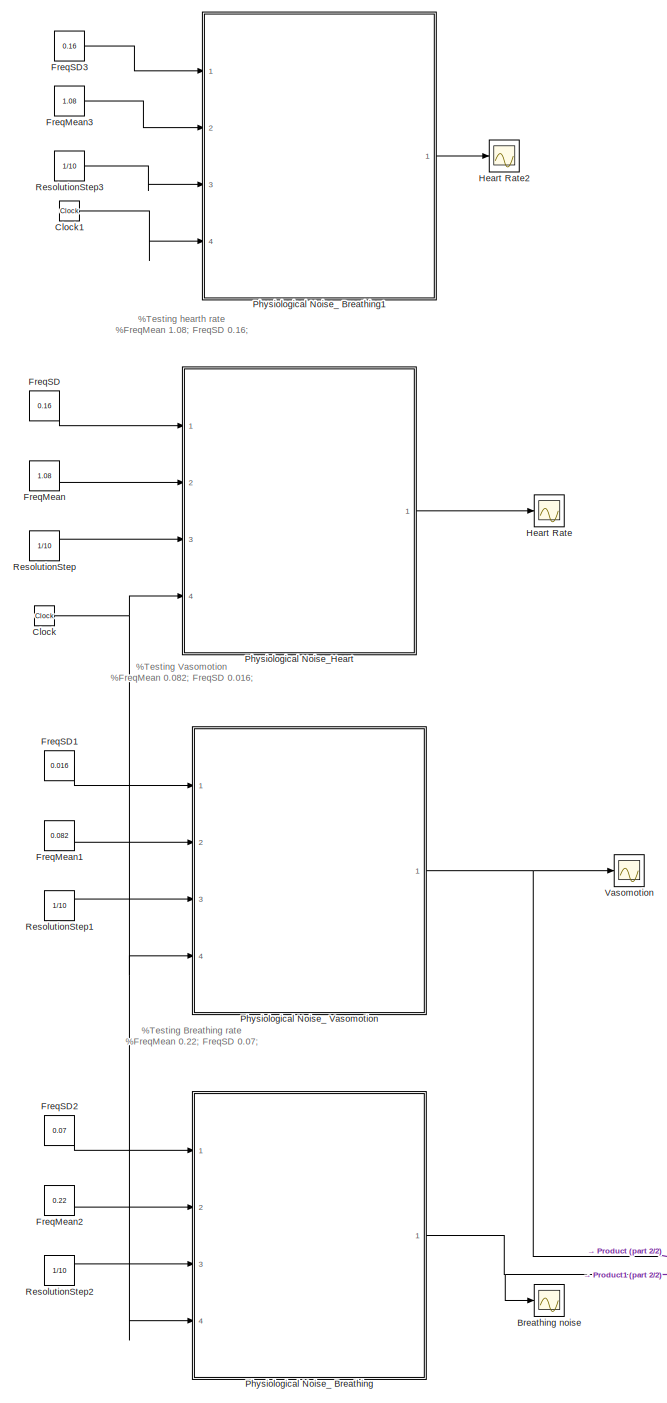
[diagram: Synthetic Human Agent/Noise Models - part 1/2, left side, full height]
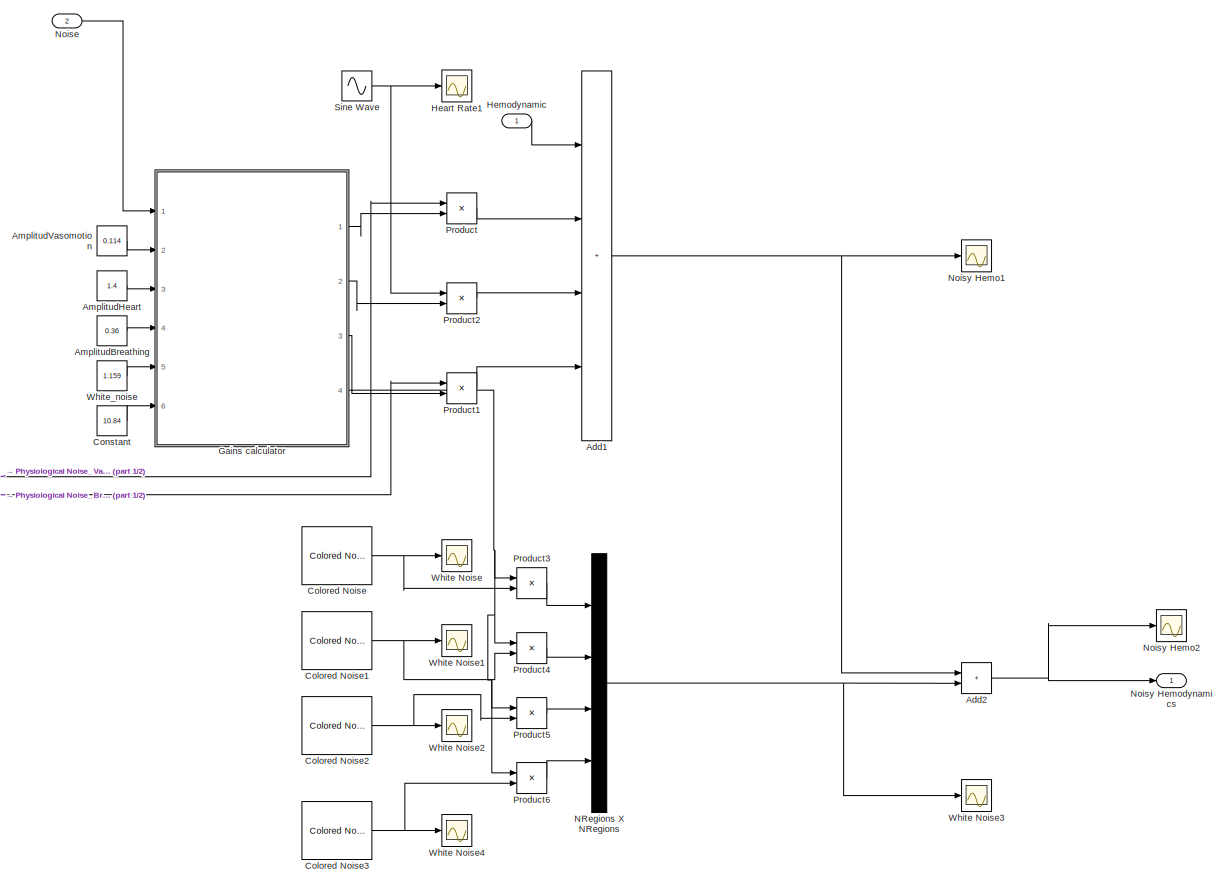
[diagram: Synthetic Human Agent/Noise Models - part 2/2, bottom right region]
BLOCK [SubSystem] Synthetic Human Agent/Noise Models
  Ports = [2, 1]
  RequestExecContextInheritance = off
BLOCK [Sum] Synthetic Human Agent/Noise Models/Add1
  IconShape = rectangular
  Inputs = ++++
  Ports = [4, 1]
BLOCK [Sum] Synthetic Human Agent/Noise Models/Add2
  IconShape = rectangular
  Ports = [2, 1]
BLOCK [Constant] Synthetic Human Agent/Noise Models/AmplitudBreathing
  NameLocation = left
  Value = 0.36
BLOCK [Constant] Synthetic Human Agent/Noise Models/AmplitudHeart
  NameLocation = left
  Value = 1.4
BLOCK [Constant] Synthetic Human Agent/Noise Models/AmplitudVasomotion
  NameLocation = left
  Value = 0.114
BLOCK [Scope] Synthetic Human Agent/Noise Models/Breathing noise
  Floating = off
  NumInputPorts = 1
  Ports = [1]
  ScopeSpecificationString = Simulink.scopes.TimeScopeBlockCfg('CurrentConfiguration', extmgr.ConfigurationSet(extmgr.Configuration('Core','General UI',true,'FigureColor',[1 1 1]),extmgr.Configuration('Core','Source UI',true),extmgr.Configuration('Sources','WiredSimulink',true,'DataLoggingVariableName','ScopeData4'),extmgr.Configuration('Visuals','Time Domain',true,'SerializedDisplays',{struct('MinYLimReal','-0.43185','MaxYLi...<+1626ch>
BLOCK [Clock] Synthetic Human Agent/Noise Models/Clock
BLOCK [Clock] Synthetic Human Agent/Noise Models/Clock1
  Commented = on
BLOCK [Reference] Synthetic Human Agent/Noise Models/Colored Noise  REF=dspsrcs4/Colored Noise
  Ports = [0, 1]
  SourceBlock = dspsrcs4/Colored Noise
  SourceProductBaseCode = DS
  SourceType = dsp.simulink.ColoredNoise
BLOCK [Reference] Synthetic Human Agent/Noise Models/Colored Noise1  REF=dspsrcs4/Colored Noise
  Ports = [0, 1]
  SourceBlock = dspsrcs4/Colored Noise
  SourceProductBaseCode = DS
  SourceType = dsp.simulink.ColoredNoise
BLOCK [Reference] Synthetic Human Agent/Noise Models/Colored Noise2  REF=dspsrcs4/Colored Noise
  Ports = [0, 1]
  SourceBlock = dspsrcs4/Colored Noise
  SourceProductBaseCode = DS
  SourceType = dsp.simulink.ColoredNoise
BLOCK [Reference] Synthetic Human Agent/Noise Models/Colored Noise3  REF=dspsrcs4/Colored Noise
  Ports = [0, 1]
  SourceBlock = dspsrcs4/Colored Noise
  SourceProductBaseCode = DS
  SourceType = dsp.simulink.ColoredNoise
BLOCK [Constant] Synthetic Human Agent/Noise Models/Constant
  Value = 10.84
BLOCK [Constant] Synthetic Human Agent/Noise Models/FreqMean
  Commented = on
  Value = 1.08
BLOCK [Constant] Synthetic Human Agent/Noise Models/FreqMean1
  Value = 0.082
BLOCK [Constant] Synthetic Human Agent/Noise Models/FreqMean2
  Value = 0.22
BLOCK [Constant] Synthetic Human Agent/Noise Models/FreqMean3
  Commented = on
  Value = 1.08
BLOCK [Constant] Synthetic Human Agent/Noise Models/FreqSD
  Commented = on
  Value = 0.16
BLOCK [Constant] Synthetic Human Agent/Noise Models/FreqSD1
  Value = 0.016
BLOCK [Constant] Synthetic Human Agent/Noise Models/FreqSD2
  Value = 0.07
BLOCK [Constant] Synthetic Human Agent/Noise Models/FreqSD3
  Commented = on
  Value = 0.16
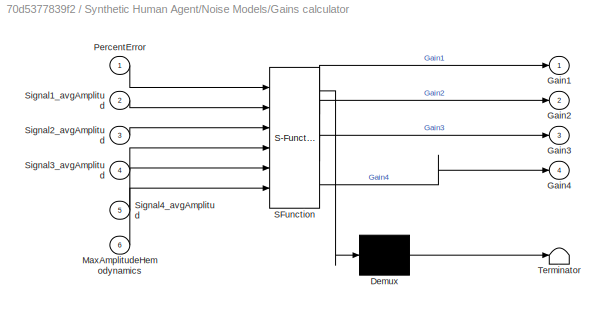
BLOCK [SubSystem] Synthetic Human Agent/Noise Models/Gains calculator
  ErrorFcn = Stateflow.Translate.translate
  PermitHierarchicalResolution = ExplicitOnly
  Ports = [6, 4]
  RequestExecContextInheritance = off
  SFBlockType = MATLAB Function
  TreatAsAtomicUnit = on
BLOCK [Demux] Synthetic Human Agent/Noise Models/Gains calculator/ Demux 
  Outputs = 1
  Ports = [1, 1]
BLOCK [S-Function] Synthetic Human Agent/Noise Models/Gains calculator/ SFunction 
  EnableBusSupport = on
  FunctionName = sf_sfun
  PortCounts = [6 5]
  Ports = [6, 5]
  SFcnIsStateOwnerBlock = off
  SFunctionDeploymentMode = off
  Tag = Stateflow S-Function 9
BLOCK [Terminator] Synthetic Human Agent/Noise Models/Gains calculator/ Terminator 
BLOCK [Outport] Synthetic Human Agent/Noise Models/Gains calculator/Gain1
BLOCK [Outport] Synthetic Human Agent/Noise Models/Gains calculator/Gain2
  Port = 2
BLOCK [Outport] Synthetic Human Agent/Noise Models/Gains calculator/Gain3
  Port = 3
BLOCK [Outport] Synthetic Human Agent/Noise Models/Gains calculator/Gain4
  Port = 4
BLOCK [Inport] Synthetic Human Agent/Noise Models/Gains calculator/MaxAmplitudeHemodynamics
  Port = 6
BLOCK [Inport] Synthetic Human Agent/Noise Models/Gains calculator/PercentError
BLOCK [Inport] Synthetic Human Agent/Noise Models/Gains calculator/Signal1_avgAmplitud
  Port = 2
BLOCK [Inport] Synthetic Human Agent/Noise Models/Gains calculator/Signal2_avgAmplitud
  Port = 3
BLOCK [Inport] Synthetic Human Agent/Noise Models/Gains calculator/Signal3_avgAmplitud
  Port = 4
BLOCK [Inport] Synthetic Human Agent/Noise Models/Gains calculator/Signal4_avgAmplitud
  Port = 5
BLOCK [Scope] Synthetic Human Agent/Noise Models/Heart Rate
  Commented = on
  Floating = off
  NumInputPorts = 1
  Ports = [1]
  ScopeSpecificationString = Simulink.scopes.TimeScopeBlockCfg('CurrentConfiguration', extmgr.ConfigurationSet(extmgr.Configuration('Core','General UI',true),extmgr.Configuration('Core','Source UI',true),extmgr.Configuration('Sources','WiredSimulink',true,'DataLoggingVariableName','ScopeData1'),extmgr.Configuration('Visuals','Time Domain',true,'SerializedDisplays',{struct('MinYLimReal','-7.00741','MaxYLimReal','7.13241','YLab...<+1810ch>
BLOCK [Scope] Synthetic Human Agent/Noise Models/Heart Rate1
  Floating = off
  NumInputPorts = 1
  Ports = [1]
  ScopeSpecificationString = Simulink.scopes.TimeScopeBlockCfg('CurrentConfiguration', extmgr.ConfigurationSet(extmgr.Configuration('Core','General UI',true,'FigureColor',[1 1 1]),extmgr.Configuration('Core','Source UI',true),extmgr.Configuration('Sources','WiredSimulink',true,'DataLoggingVariableName','ScopeData1'),extmgr.Configuration('Visuals','Time Domain',true,'SerializedDisplays',{struct('MinYLimReal','-1.2499','MaxYLim...<+1601ch>
BLOCK [Scope] Synthetic Human Agent/Noise Models/Heart Rate2
  Commented = on
  Floating = off
  NumInputPorts = 1
  Ports = [1]
  ScopeSpecificationString = Simulink.scopes.TimeScopeBlockCfg('CurrentConfiguration', extmgr.ConfigurationSet(extmgr.Configuration('Core','General UI',true),extmgr.Configuration('Core','Source UI',true),extmgr.Configuration('Sources','WiredSimulink',true,'DataLoggingVariableName','ScopeData2'),extmgr.Configuration('Visuals','Time Domain',true,'SerializedDisplays',{struct('MinYLimReal','-7.57614','MaxYLimReal','7.70309','YLab...<+1978ch>
BLOCK [Inport] Synthetic Human Agent/Noise Models/Hemodynamic
BLOCK [Mux] Synthetic Human Agent/Noise Models/NRegions X NRegions
  DisplayOption = bar
  Ports = [4, 1]
BLOCK [Inport] Synthetic Human Agent/Noise Models/Noise
  Port = 2
BLOCK [Scope] Synthetic Human Agent/Noise Models/Noisy Hemo1
  Floating = off
  NumInputPorts = 1
  Ports = [1]
  ScopeSpecificationString = Simulink.scopes.TimeScopeBlockCfg('CurrentConfiguration', extmgr.ConfigurationSet(extmgr.Configuration('Core','General UI',true),extmgr.Configuration('Core','Source UI',true),extmgr.Configuration('Sources','WiredSimulink',true,'DataLoggingVariableName','ScopeData1'),extmgr.Configuration('Visuals','Time Domain',true,'SerializedDisplays',{struct('MinYLimReal','-1.03203','MaxYLimReal','4.60504','YLab...<+1466ch>
BLOCK [Scope] Synthetic Human Agent/Noise Models/Noisy Hemo2
  Floating = off
  NumInputPorts = 1
  Ports = [1]
  ScopeSpecificationString = Simulink.scopes.TimeScopeBlockCfg('CurrentConfiguration', extmgr.ConfigurationSet(extmgr.Configuration('Core','General UI',true),extmgr.Configuration('Core','Source UI',true),extmgr.Configuration('Sources','WiredSimulink',true,'DataLoggingVariableName','ScopeData9'),extmgr.Configuration('Visuals','Time Domain',true,'SerializedDisplays',{struct('MinYLimReal','-114.07074','MaxYLimReal','117.66384','...<+1479ch>
BLOCK [Outport] Synthetic Human Agent/Noise Models/Noisy Hemodynamics
BLOCK [SubSystem] Synthetic Human Agent/Noise Models/Physiological Noise_ Breathing
  ErrorFcn = Stateflow.Translate.translate
  PermitHierarchicalResolution = ExplicitOnly
  Ports = [4, 1]
  RequestExecContextInheritance = off
  SFBlockType = MATLAB Function
  TreatAsAtomicUnit = on
BLOCK [Demux] Synthetic Human Agent/Noise Models/Physiological Noise_ Breathing/ Demux 
  Outputs = 1
  Ports = [1, 1]
BLOCK [S-Function] Synthetic Human Agent/Noise Models/Physiological Noise_ Breathing/ SFunction 
  EnableBusSupport = on
  FunctionName = sf_sfun
  PortCounts = [4 2]
  Ports = [4, 2]
  SFcnIsStateOwnerBlock = off
  SFunctionDeploymentMode = off
  Tag = Stateflow S-Function 11
BLOCK [Terminator] Synthetic Human Agent/Noise Models/Physiological Noise_ Breathing/ Terminator 
BLOCK [Inport] Synthetic Human Agent/Noise Models/Physiological Noise_ Breathing/FreqMean
  Port = 2
BLOCK [Inport] Synthetic Human Agent/Noise Models/Physiological Noise_ Breathing/FreqSD
BLOCK [Outport] Synthetic Human Agent/Noise Models/Physiological Noise_ Breathing/HemoNoises
BLOCK [Inport] Synthetic Human Agent/Noise Models/Physiological Noise_ Breathing/ResolutionStep
  Port = 3
BLOCK [Inport] Synthetic Human Agent/Noise Models/Physiological Noise_ Breathing/timestamps
  Port = 4
BLOCK [SubSystem] Synthetic Human Agent/Noise Models/Physiological Noise_ Breathing1
  Commented = on
  ErrorFcn = Stateflow.Translate.translate
  PermitHierarchicalResolution = ExplicitOnly
  Ports = [4, 1]
  RequestExecContextInheritance = off
  SFBlockType = MATLAB Function
  TreatAsAtomicUnit = on
BLOCK [Demux] Synthetic Human Agent/Noise Models/Physiological Noise_ Breathing1/ Demux 
  Outputs = 1
  Ports = [1, 1]
BLOCK [S-Function] Synthetic Human Agent/Noise Models/Physiological Noise_ Breathing1/ SFunction 
  EnableBusSupport = on
  FunctionName = sf_sfun
  PortCounts = [4 2]
  Ports = [4, 2]
  SFcnIsStateOwnerBlock = off
  SFunctionDeploymentMode = off
  Tag = Stateflow S-Function 15
BLOCK [Terminator] Synthetic Human Agent/Noise Models/Physiological Noise_ Breathing1/ Terminator 
BLOCK [Inport] Synthetic Human Agent/Noise Models/Physiological Noise_ Breathing1/FreqMean
  Port = 2
BLOCK [Inport] Synthetic Human Agent/Noise Models/Physiological Noise_ Breathing1/FreqSD
BLOCK [Outport] Synthetic Human Agent/Noise Models/Physiological Noise_ Breathing1/HemoNoises
BLOCK [Inport] Synthetic Human Agent/Noise Models/Physiological Noise_ Breathing1/ResolutionStep
  Port = 3
BLOCK [Inport] Synthetic Human Agent/Noise Models/Physiological Noise_ Breathing1/timestamps
  Port = 4
BLOCK [SubSystem] Synthetic Human Agent/Noise Models/Physiological Noise_ Vasomotion
  ErrorFcn = Stateflow.Translate.translate
  PermitHierarchicalResolution = ExplicitOnly
  Ports = [4, 1]
  RequestExecContextInheritance = off
  SFBlockType = MATLAB Function
  TreatAsAtomicUnit = on
BLOCK [Demux] Synthetic Human Agent/Noise Models/Physiological Noise_ Vasomotion/ Demux 
  Outputs = 1
  Ports = [1, 1]
BLOCK [S-Function] Synthetic Human Agent/Noise Models/Physiological Noise_ Vasomotion/ SFunction 
  EnableBusSupport = on
  FunctionName = sf_sfun
  PortCounts = [4 2]
  Ports = [4, 2]
  SFcnIsStateOwnerBlock = off
  SFunctionDeploymentMode = off
  Tag = Stateflow S-Function 16
BLOCK [Terminator] Synthetic Human Agent/Noise Models/Physiological Noise_ Vasomotion/ Terminator 
BLOCK [Inport] Synthetic Human Agent/Noise Models/Physiological Noise_ Vasomotion/FreqMean
  Port = 2
BLOCK [Inport] Synthetic Human Agent/Noise Models/Physiological Noise_ Vasomotion/FreqSD
BLOCK [Outport] Synthetic Human Agent/Noise Models/Physiological Noise_ Vasomotion/HemoNoises
BLOCK [Inport] Synthetic Human Agent/Noise Models/Physiological Noise_ Vasomotion/ResolutionStep
  Port = 3
BLOCK [Inport] Synthetic Human Agent/Noise Models/Physiological Noise_ Vasomotion/timestamps
  Port = 4
BLOCK [SubSystem] Synthetic Human Agent/Noise Models/Physiological Noise_Heart
  Commented = on
  ErrorFcn = Stateflow.Translate.translate
  PermitHierarchicalResolution = ExplicitOnly
  Ports = [4, 1]
  RequestExecContextInheritance = off
  SFBlockType = MATLAB Function
  TreatAsAtomicUnit = on
BLOCK [Demux] Synthetic Human Agent/Noise Models/Physiological Noise_Heart/ Demux 
  Outputs = 1
  Ports = [1, 1]
BLOCK [S-Function] Synthetic Human Agent/Noise Models/Physiological Noise_Heart/ SFunction 
  EnableBusSupport = on
  FunctionName = sf_sfun
  PortCounts = [4 2]
  Ports = [4, 2]
  SFcnIsStateOwnerBlock = off
  SFunctionDeploymentMode = off
  Tag = Stateflow S-Function 17
BLOCK [Terminator] Synthetic Human Agent/Noise Models/Physiological Noise_Heart/ Terminator 
BLOCK [Inport] Synthetic Human Agent/Noise Models/Physiological Noise_Heart/FreqMean
  Port = 2
BLOCK [Inport] Synthetic Human Agent/Noise Models/Physiological Noise_Heart/FreqSD
BLOCK [Outport] Synthetic Human Agent/Noise Models/Physiological Noise_Heart/HemoNoises
BLOCK [Inport] Synthetic Human Agent/Noise Models/Physiological Noise_Heart/ResolutionStep
  Port = 3
BLOCK [Inport] Synthetic Human Agent/Noise Models/Physiological Noise_Heart/timestamps
  Port = 4
BLOCK [Product] Synthetic Human Agent/Noise Models/Product
  Ports = [2, 1]
BLOCK [Product] Synthetic Human Agent/Noise Models/Product1
  Ports = [2, 1]
BLOCK [Product] Synthetic Human Agent/Noise Models/Product2
  Ports = [2, 1]
BLOCK [Product] Synthetic Human Agent/Noise Models/Product3
  Ports = [2, 1]
BLOCK [Product] Synthetic Human Agent/Noise Models/Product4
  Ports = [2, 1]
BLOCK [Product] Synthetic Human Agent/Noise Models/Product5
  Ports = [2, 1]
BLOCK [Product] Synthetic Human Agent/Noise Models/Product6
  Ports = [2, 1]
BLOCK [Constant] Synthetic Human Agent/Noise Models/ResolutionStep
  Commented = on
  Value = 1/10
BLOCK [Constant] Synthetic Human Agent/Noise Models/ResolutionStep1
  Value = 1/10
BLOCK [Constant] Synthetic Human Agent/Noise Models/ResolutionStep2
  Value = 1/10
BLOCK [Constant] Synthetic Human Agent/Noise Models/ResolutionStep3
  Commented = on
  Value = 1/10
BLOCK [Sin] Synthetic Human Agent/Noise Models/Sine Wave
  Frequency = 1.08 * 2*pi
  Ports = [0, 1]
  SampleTime = 0
BLOCK [Scope] Synthetic Human Agent/Noise Models/Vasomotion
  Floating = off
  NumInputPorts = 1
  Ports = [1]
  ScopeSpecificationString = Simulink.scopes.TimeScopeBlockCfg('CurrentConfiguration', extmgr.ConfigurationSet(extmgr.Configuration('Core','General UI',true,'FigureColor',[1 1 1]),extmgr.Configuration('Core','Source UI',true),extmgr.Configuration('Sources','WiredSimulink',true,'DataLoggingVariableName','ScopeData2'),extmgr.Configuration('Visuals','Time Domain',true,'SerializedDisplays',{struct('MinYLimReal','-0.15989','MaxYLi...<+1585ch>
BLOCK [Scope] Synthetic Human Agent/Noise Models/White Noise
  Floating = off
  NumInputPorts = 1
  Ports = [1]
  ScopeSpecificationString = Simulink.scopes.TimeScopeBlockCfg('CurrentConfiguration', extmgr.ConfigurationSet(extmgr.Configuration('Core','General UI',true,'FigureColor',[1 1 1]),extmgr.Configuration('Core','Source UI',true),extmgr.Configuration('Sources','WiredSimulink',true,'DataLoggingVariableName','ScopeData4'),extmgr.Configuration('Visuals','Time Domain',true,'SerializedDisplays',{struct('MinYLimReal','-1.23143','MaxYLi...<+1585ch>
BLOCK [Scope] Synthetic Human Agent/Noise Models/White Noise1
  Floating = off
  NumInputPorts = 1
  Ports = [1]
  ScopeSpecificationString = Simulink.scopes.TimeScopeBlockCfg('CurrentConfiguration', extmgr.ConfigurationSet(extmgr.Configuration('Core','General UI',true),extmgr.Configuration('Core','Source UI',true),extmgr.Configuration('Sources','WiredSimulink',true,'DataLoggingVariableName','ScopeData5'),extmgr.Configuration('Visuals','Time Domain',true,'SerializedDisplays',{struct('MinYLimReal','-1.24899','MaxYLimReal','1.24941','YLab...<+1756ch>
BLOCK [Scope] Synthetic Human Agent/Noise Models/White Noise2
  Floating = off
  NumInputPorts = 1
  Ports = [1]
  ScopeSpecificationString = Simulink.scopes.TimeScopeBlockCfg('CurrentConfiguration', extmgr.ConfigurationSet(extmgr.Configuration('Core','General UI',true),extmgr.Configuration('Core','Source UI',true),extmgr.Configuration('Sources','WiredSimulink',true,'DataLoggingVariableName','ScopeData6'),extmgr.Configuration('Visuals','Time Domain',true,'SerializedDisplays',{struct('MinYLimReal','-1.2424','MaxYLimReal','1.24798','YLabe...<+1755ch>
BLOCK [Scope] Synthetic Human Agent/Noise Models/White Noise3
  Floating = off
  NumInputPorts = 1
  Ports = [1]
  ScopeSpecificationString = Simulink.scopes.TimeScopeBlockCfg('CurrentConfiguration', extmgr.ConfigurationSet(extmgr.Configuration('Core','General UI',true),extmgr.Configuration('Core','Source UI',true),extmgr.Configuration('Sources','WiredSimulink',true,'DataLoggingVariableName','ScopeData7'),extmgr.Configuration('Visuals','Time Domain',true,'SerializedDisplays',{struct('MinYLimReal','-1.24799','MaxYLimReal','1.24521','YLab...<+1838ch>
BLOCK [Scope] Synthetic Human Agent/Noise Models/White Noise4
  Floating = off
  NumInputPorts = 1
  Ports = [1]
  ScopeSpecificationString = Simulink.scopes.TimeScopeBlockCfg('CurrentConfiguration', extmgr.ConfigurationSet(extmgr.Configuration('Core','General UI',true),extmgr.Configuration('Core','Source UI',true),extmgr.Configuration('Sources','WiredSimulink',true,'DataLoggingVariableName','ScopeData8'),extmgr.Configuration('Visuals','Time Domain',true,'SerializedDisplays',{struct('MinYLimReal','-1.24799','MaxYLimReal','1.24521','YLab...<+1755ch>
BLOCK [Constant] Synthetic Human Agent/Noise Models/White_noise
  NameLocation = left
  Value = 1.159
BLOCK [Inport] Synthetic Human Agent/Nosie
  Port = 6
BLOCK [SubSystem] Synthetic Human Agent/Optics_1
  ErrorFcn = Stateflow.Translate.translate
  PermitHierarchicalResolution = ExplicitOnly
  Ports = [3, 1]
  RequestExecContextInheritance = off
  SFBlockType = MATLAB Function
  TreatAsAtomicUnit = on
BLOCK [Demux] Synthetic Human Agent/Optics_1/ Demux 
  Outputs = 1
  Ports = [1, 1]
BLOCK [S-Function] Synthetic Human Agent/Optics_1/ SFunction 
  EnableBusSupport = on
  FunctionName = sf_sfun
  PortCounts = [3 2]
  Ports = [3, 2]
  SFcnIsStateOwnerBlock = off
  SFunctionDeploymentMode = off
  Tag = Stateflow S-Function 18
BLOCK [Terminator] Synthetic Human Agent/Optics_1/ Terminator 
BLOCK [Inport] Synthetic Human Agent/Optics_1/DH
  Port = 2
BLOCK [Inport] Synthetic Human Agent/Optics_1/DQ
  Port = 3
BLOCK [Outport] Synthetic Human Agent/Optics_1/Y
BLOCK [Inport] Synthetic Human Agent/Optics_1/nRegions
BLOCK [Outport] Synthetic Human Agent/Pobs
BLOCK [Scope] Synthetic Human Agent/Pobs-Setpoint
  Floating = off
  NumInputPorts = 1
  Ports = [1]
  ScopeSpecificationString = Simulink.scopes.TimeScopeBlockCfg('CurrentConfiguration', extmgr.ConfigurationSet(extmgr.Configuration('Core','General UI',true,'FigureColor',[1 1 1]),extmgr.Configuration('Core','Source UI',true),extmgr.Configuration('Sources','WiredSimulink',true,'DataLoggingVariableName','ScopeData1'),extmgr.Configuration('Visuals','Time Domain',true,'SerializedDisplays',{struct('MinYLimReal','-0.08506','MaxYLi...<+1815ch>
BLOCK [Scope] Synthetic Human Agent/Pobs-Setpoint1
  Floating = off
  NumInputPorts = 1
  Ports = [1]
  ScopeSpecificationString = Simulink.scopes.TimeScopeBlockCfg('CurrentConfiguration', extmgr.ConfigurationSet(extmgr.Configuration('Core','General UI',true,'FigureColor',[1 1 1]),extmgr.Configuration('Core','Source UI',true),extmgr.Configuration('Sources','WiredSimulink',true,'DataLoggingVariableName','ScopeData1'),extmgr.Configuration('Visuals','Time Domain',true,'SerializedDisplays',{struct('MinYLimReal','-2.03954','MaxYLi...<+1916ch>
BLOCK [Inport] Synthetic Human Agent/Stimulus
BLOCK [SubSystem] Synthetic Human Agent/Visual Interpretation
  ErrorFcn = Stateflow.Translate.translate
  PermitHierarchicalResolution = ExplicitOnly
  Ports = [2, 1]
  RequestExecContextInheritance = off
  SFBlockType = MATLAB Function
  TreatAsAtomicUnit = on
BLOCK [Demux] Synthetic Human Agent/Visual Interpretation/ Demux 
  Outputs = 1
  Ports = [1, 1]
BLOCK [S-Function] Synthetic Human Agent/Visual Interpretation/ SFunction 
  EnableBusSupport = on
  FunctionName = sf_sfun
  PortCounts = [2 2]
  Ports = [2, 2]
  SFcnIsStateOwnerBlock = off
  SFunctionDeploymentMode = off
  Tag = Stateflow S-Function 12
BLOCK [Terminator] Synthetic Human Agent/Visual Interpretation/ Terminator 
BLOCK [Outport] Synthetic Human Agent/Visual Interpretation/Response
BLOCK [Inport] Synthetic Human Agent/Visual Interpretation/Visual_Stimulus
BLOCK [Inport] Synthetic Human Agent/Visual Interpretation/t
  Port = 2
BLOCK [Outport] Synthetic Human Agent/Y
  Port = 2
BLOCK [Inport] Synthetic Human Agent/nRegions
  Port = 5
BLOCK [Scope] fNIRS1
  Floating = off
  NumInputPorts = 1
  Ports = [1]
  ScopeSpecificationString = Simulink.scopes.TimeScopeBlockCfg('CurrentConfiguration', extmgr.ConfigurationSet(extmgr.Configuration('Core','General UI',true,'FigureColor',[1 1 1]),extmgr.Configuration('Core','Source UI',true),extmgr.Configuration('Sources','WiredSimulink',true,'DataLoggingVariableName','ScopeData16'),extmgr.Configuration('Visuals','Time Domain',true,'SerializedDisplays',{struct('MinYLimReal','-0.01819','MaxYL...<+1962ch>
BLOCK [Constant] nRegions
  Value = 2
BLOCK [Constant] w1
  NameLocation = left
  Value = 0.5
ANNOTATION Synthetic Human Agent/Noise Models: %Testing Breathing rate %FreqMean 0.22; FreqSD 0.07;
ANNOTATION Synthetic Human Agent/Noise Models: %Testing Vasomotion %FreqMean 0.082; FreqSD 0.016;
ANNOTATION Synthetic Human Agent/Noise Models: %Testing hearth rate %FreqMean 1.08; FreqSD 0.16;
LINE A:1 -> Synthetic Human Agent:2
LINE B:1 -> Synthetic Human Agent:3
LINE C:1 -> Synthetic Human Agent:4
LINE Connectivity_Regions1:1 -> Display7:1
NET Connectivity_Regions1:2 -> Display8:1, Mux2:1
NET Connectivity_Regions1:3 -> Display9:1, Mux2:2
LINE Connectivity_Regions1:4 -> Display10:1
NET Derivative:1 -> Error1:1, Mux4:2
LINE Desired Connectivity1:1 -> Error Function2:3
LINE Error Function2/Bobs:1 -> Error Function2/Error Function:4
LINE Error Function2/Bref:1 -> Error Function2/Error Function:3
NET Error Function2/Error Function/Bobs:1 -> Error Function2/Error Function/Error_SHD:2, Error Function2/Error Function/MATLAB Function(err2)_Saturated:2
NET Error Function2/Error Function/Bref:1 -> Error Function2/Error Function/Error_SHD:1, Error Function2/Error Function/MATLAB Function(err2)_Saturated:1
NET Error Function2/Error Function/Derivative:1 -> Error Function2/Error Function/Error Scope1:1, Error Function2/Error Function/dError:1
NET Error Function2/Error Function/Error_SHD:1 -> Error Function2/Error Function/MATLAB Function(err2)_Saturated:5, Error Function2/Error Function/SHD:1
LINE Error Function2/Error Function/Error_SHD:2 -> Error Function2/Error Function/Difference Matrix:1
NET Error Function2/Error Function/MATLAB Function(err2)_Saturated:1 -> Error Function2/Error Function/Derivative:1, Error Function2/Error Function/E:1, Error Function2/Error Function/Error Scope:1, Error Function2/Error Function/Error:1
LINE Error Function2/Error Function/MATLAB Function(err2)_Saturated:2 -> Error Function2/Error Function/Error1:1
LINE Error Function2/Error Function/MATLAB Function(err2)_Saturated:3 -> Error Function2/Error Function/Error2:1
LINE Error Function2/Error Function/Pobs:1 -> Error Function2/Error Function/MATLAB Function(err2)_Saturated:4
LINE Error Function2/Error Function/Pref:1 -> Error Function2/Error Function/MATLAB Function(err2)_Saturated:3
LINE Error Function2/Error Function/W1:1 -> Error Function2/Error Function/MATLAB Function(err2)_Saturated:6
LINE Error Function2/Error Function:1 -> Error Function2/E:1
LINE Error Function2/Pobs:1 -> Error Function2/Error Function:1
LINE Error Function2/Pref:1 -> Error Function2/Rehabilitation Train:1
LINE Error Function2/Rehabilitation Train/Duty_Cycle_U1:1 -> Error Function2/Rehabilitation Train/Variable Pulse Generator2:1
LINE Error Function2/Rehabilitation Train/In1:1 -> Error Function2/Rehabilitation Train/Setpoint_follow:2
LINE Error Function2/Rehabilitation Train/Period_Time_U1:1 -> Error Function2/Rehabilitation Train/Variable Pulse Generator2:2
LINE Error Function2/Rehabilitation Train/Setpoint_follow:1 -> Error Function2/Rehabilitation Train/Instruction:1
LINE Error Function2/Rehabilitation Train/Variable Pulse Generator2:1 -> Error Function2/Rehabilitation Train/Setpoint_follow:1
NET Error Function2/Rehabilitation Train:1 -> Error Function2/Error Function:2, Error Function2/Instruction:1
LINE Error Function2/W1:1 -> Error Function2/Error Function:5
NET Error Function2:1 -> Derivative:1, Error:1, Mux4:1
NET Error Function2:2 -> Instruction1:1, Mux1:2
NET Fuzzy Logic Controller1:1 -> E3:1, Fuzzy1:1, Scope1:1, Synthetic Human Agent:1
LINE Fuzzy1:1 -> Mux1:3
LINE Mux1:1 -> Pobs-Setpoint1:1
LINE Mux2:1 -> Connectivity1:1
NET Mux4:1 -> E2:1, Error2:1, Fuzzy Logic Controller1:1
LINE Noise:1 -> Synthetic Human Agent:6
LINE Setpoint1:1 -> Error Function2:2
LINE Subsystem1/Incremental_Avg_Boot1/Constant1:1 -> Subsystem1/Incremental_Avg_Boot1/Sum2:2
NET Subsystem1/Incremental_Avg_Boot1/Constant6:1 -> Subsystem1/Incremental_Avg_Boot1/Divide:2, Subsystem1/Incremental_Avg_Boot1/Reboot:1
NET Subsystem1/Incremental_Avg_Boot1/Delay1:1 -> Subsystem1/Incremental_Avg_Boot1/Qk + (R-Qk // K+1) :2, Subsystem1/Incremental_Avg_Boot1/R-Qk:2
LINE Subsystem1/Incremental_Avg_Boot1/Divide:1 -> Subsystem1/Incremental_Avg_Boot1/Reboot:2
NET Subsystem1/Incremental_Avg_Boot1/Qk + (R-Qk // K+1) :1 -> Subsystem1/Incremental_Avg_Boot1/Delay1:1, Subsystem1/Incremental_Avg_Boot1/Transpose2:1
LINE Subsystem1/Incremental_Avg_Boot1/R-Qk // K+1:1 -> Subsystem1/Incremental_Avg_Boot1/Qk + (R-Qk // K+1) :1
LINE Subsystem1/Incremental_Avg_Boot1/R-Qk:1 -> Subsystem1/Incremental_Avg_Boot1/R-Qk // K+1:1
NET Subsystem1/Incremental_Avg_Boot1/Reboot/Clock1:1 -> Subsystem1/Incremental_Avg_Boot1/Reboot/MATLAB Function1:1, Subsystem1/Incremental_Avg_Boot1/Reboot/Timer:1
LINE Subsystem1/Incremental_Avg_Boot1/Reboot/Constant1:1 -> Subsystem1/Incremental_Avg_Boot1/Reboot/Divide:2
LINE Subsystem1/Incremental_Avg_Boot1/Reboot/Cycle_time:1 -> Subsystem1/Incremental_Avg_Boot1/Reboot/MATLAB Function1:2
LINE Subsystem1/Incremental_Avg_Boot1/Reboot/Delay1:1 -> Subsystem1/Incremental_Avg_Boot1/Reboot/MATLAB Function2:2
LINE Subsystem1/Incremental_Avg_Boot1/Reboot/Divide:1 -> Subsystem1/Incremental_Avg_Boot1/Reboot/Time:1
NET Subsystem1/Incremental_Avg_Boot1/Reboot/MATLAB Function1:1 -> Subsystem1/Incremental_Avg_Boot1/Reboot/MATLAB Function2:1, Subsystem1/Incremental_Avg_Boot1/Reboot/Timer1:1
NET Subsystem1/Incremental_Avg_Boot1/Reboot/MATLAB Function2:1 -> Subsystem1/Incremental_Avg_Boot1/Reboot/Delay1:1, Subsystem1/Incremental_Avg_Boot1/Reboot/Divide:1, Subsystem1/Incremental_Avg_Boot1/Reboot/y:1
LINE Subsystem1/Incremental_Avg_Boot1/Reboot/periods:1 -> Subsystem1/Incremental_Avg_Boot1/Reboot/MATLAB Function1:3
LINE Subsystem1/Incremental_Avg_Boot1/Reboot:1 -> Subsystem1/Incremental_Avg_Boot1/Display1:1
NET Subsystem1/Incremental_Avg_Boot1/Reboot:2 -> Subsystem1/Incremental_Avg_Boot1/Display:1, Subsystem1/Incremental_Avg_Boot1/Sum2:1
LINE Subsystem1/Incremental_Avg_Boot1/Stop time:1 -> Subsystem1/Incremental_Avg_Boot1/Divide:1
LINE Subsystem1/Incremental_Avg_Boot1/Sum2:1 -> Subsystem1/Incremental_Avg_Boot1/R-Qk // K+1:2
LINE Subsystem1/Incremental_Avg_Boot1/Transpose2:1 -> Subsystem1/Incremental_Avg_Boot1/D :1
LINE Subsystem1/Incremental_Avg_Boot1/fNIRS:1 -> Subsystem1/Incremental_Avg_Boot1/R-Qk:1
LINE Subsystem1/Incremental_Avg_Boot1:1 -> Subsystem1/getConnectivity_Validation1:1
LINE Subsystem1/Threshold:1 -> Subsystem1/getConnectivity_Validation1:2
LINE Subsystem1/fNIRS:1 -> Subsystem1/Incremental_Avg_Boot1:1
LINE Subsystem1/getConnectivity_Validation1:1 -> Subsystem1/Bobs:1
LINE Subsystem1/getConnectivity_Validation1:2 -> Subsystem1/DQ1:1
NET Subsystem1:1 -> Bobs2:1, Connectivity_Regions1:1, Error Function2:5
LINE Synthetic Human Agent/A:1 -> Synthetic Human Agent/Neurodynamics_Static:4
LINE Synthetic Human Agent/B:1 -> Synthetic Human Agent/Neurodynamics_Static:3
LINE Synthetic Human Agent/C:1 -> Synthetic Human Agent/Neurodynamics_Static:2
LINE Synthetic Human Agent/Clock:1 -> Synthetic Human Agent/Visual Interpretation:2
LINE Synthetic Human Agent/DH and DQ/Constant1:1 -> Synthetic Human Agent/DH and DQ/Delta-P:2
LINE Synthetic Human Agent/DH and DQ/Constant2:1 -> Synthetic Human Agent/DH and DQ/Product:1
LINE Synthetic Human Agent/DH and DQ/Constant3:1 -> Synthetic Human Agent/DH and DQ/Product1:1
LINE Synthetic Human Agent/DH and DQ/Constant:1 -> Synthetic Human Agent/DH and DQ/Delta-Q:2
NET Synthetic Human Agent/DH and DQ/Delta-H:1 -> Synthetic Human Agent/DH and DQ/D-H:1, Synthetic Human Agent/DH and DQ/Demux1:1
LINE Synthetic Human Agent/DH and DQ/Delta-P:1 -> Synthetic Human Agent/DH and DQ/Product:2
LINE Synthetic Human Agent/DH and DQ/Delta-Q:1 -> Synthetic Human Agent/DH and DQ/Product1:2
NET Synthetic Human Agent/DH and DQ/Demux1:1 -> Synthetic Human Agent/DH and DQ/Mux2:1, Synthetic Human Agent/DH and DQ/Mux:2
NET Synthetic Human Agent/DH and DQ/Demux1:2 -> Synthetic Human Agent/DH and DQ/Mux1:2, Synthetic Human Agent/DH and DQ/Mux2:2
NET Synthetic Human Agent/DH and DQ/Demux2:1 -> Synthetic Human Agent/DH and DQ/Mux2:3, Synthetic Human Agent/DH and DQ/Mux:3
NET Synthetic Human Agent/DH and DQ/Demux2:2 -> Synthetic Human Agent/DH and DQ/Mux1:3, Synthetic Human Agent/DH and DQ/Mux2:4
LINE Synthetic Human Agent/DH and DQ/Demux:1 -> Synthetic Human Agent/DH and DQ/Mux:1
LINE Synthetic Human Agent/DH and DQ/Demux:2 -> Synthetic Human Agent/DH and DQ/Mux1:1
LINE Synthetic Human Agent/DH and DQ/Mux1:1 -> Synthetic Human Agent/DH and DQ/SMA:1
LINE Synthetic Human Agent/DH and DQ/Mux2:1 -> Synthetic Human Agent/DH and DQ/Hemo:1
LINE Synthetic Human Agent/DH and DQ/Mux:1 -> Synthetic Human Agent/DH and DQ/M1:1
NET Synthetic Human Agent/DH and DQ/Product1:1 -> Synthetic Human Agent/DH and DQ/D-Q:1, Synthetic Human Agent/DH and DQ/Delta-H:2, Synthetic Human Agent/DH and DQ/Demux2:1
NET Synthetic Human Agent/DH and DQ/Product:1 -> Synthetic Human Agent/DH and DQ/D-P:1, Synthetic Human Agent/DH and DQ/Delta-H:1, Synthetic Human Agent/DH and DQ/Demux:1
LINE Synthetic Human Agent/DH and DQ/pj:1 -> Synthetic Human Agent/DH and DQ/Delta-P:1
LINE Synthetic Human Agent/DH and DQ/qj:1 -> Synthetic Human Agent/DH and DQ/Delta-Q:1
NET Synthetic Human Agent/DH and DQ:1 -> Synthetic Human Agent/Clean:1, Synthetic Human Agent/Noise Models:1, Synthetic Human Agent/Pobs-Setpoint1:1
LINE Synthetic Human Agent/Demux:1 -> Synthetic Human Agent/Optics_1:2
LINE Synthetic Human Agent/Demux:2 -> Synthetic Human Agent/Optics_1:3
NET Synthetic Human Agent/Hemodynamics/Efp:1 -> Synthetic Human Agent/Hemodynamics/Efp_1:1, Synthetic Human Agent/Hemodynamics/Rate-Deoxy-Hemo:4
NET Synthetic Human Agent/Hemodynamics/Rate Blood Volume/Add1:1 -> Synthetic Human Agent/Hemodynamics/Rate Blood Volume/Fjout:1, Synthetic Human Agent/Hemodynamics/Rate Blood Volume/Scope:1
LINE Synthetic Human Agent/Hemodynamics/Rate Blood Volume/Add:1 -> Synthetic Human Agent/Hemodynamics/Rate Blood Volume/Divide:1
NET Synthetic Human Agent/Hemodynamics/Rate Blood Volume/Divide:1 -> Synthetic Human Agent/Hemodynamics/Rate Blood Volume/Integrator:1, Synthetic Human Agent/Hemodynamics/Rate Blood Volume/Product:2
LINE Synthetic Human Agent/Hemodynamics/Rate Blood Volume/Fjin:1 -> Synthetic Human Agent/Hemodynamics/Rate Blood Volume/Add:1
NET Synthetic Human Agent/Hemodynamics/Rate Blood Volume/Fv_s:1 -> Synthetic Human Agent/Hemodynamics/Rate Blood Volume/Add1:1, Synthetic Human Agent/Hemodynamics/Rate Blood Volume/Add:2
NET Synthetic Human Agent/Hemodynamics/Rate Blood Volume/Integrator:1 -> Synthetic Human Agent/Hemodynamics/Rate Blood Volume/Fv_s:1, Synthetic Human Agent/Hemodynamics/Rate Blood Volume/Vj//Tjv:1, Synthetic Human Agent/Hemodynamics/Rate Blood Volume/Vj:1
LINE Synthetic Human Agent/Hemodynamics/Rate Blood Volume/Product:1 -> Synthetic Human Agent/Hemodynamics/Rate Blood Volume/Add1:2
LINE Synthetic Human Agent/Hemodynamics/Rate Blood Volume/Tjv:1 -> Synthetic Human Agent/Hemodynamics/Rate Blood Volume/Product:1
LINE Synthetic Human Agent/Hemodynamics/Rate Blood Volume/Vj//Tjv:1 -> Synthetic Human Agent/Hemodynamics/Rate Blood Volume/Divide:2
NET Synthetic Human Agent/Hemodynamics/Rate Blood Volume:1 -> Synthetic Human Agent/Hemodynamics/Rate-Deoxy-Hemo:2, Synthetic Human Agent/Hemodynamics/Rate-Total-Hemo:1, Synthetic Human Agent/Hemodynamics/Vj:1
NET Synthetic Human Agent/Hemodynamics/Rate Blood Volume:2 -> Synthetic Human Agent/Hemodynamics/Fjout:1, Synthetic Human Agent/Hemodynamics/Rate-Deoxy-Hemo:3, Synthetic Human Agent/Hemodynamics/Rate-Total-Hemo:2
LINE Synthetic Human Agent/Hemodynamics/Rate-Deoxy-Hemo/Divide:1 -> Synthetic Human Agent/Hemodynamics/Rate-Deoxy-Hemo/Product1:2
LINE Synthetic Human Agent/Hemodynamics/Rate-Deoxy-Hemo/Efp:1 -> Synthetic Human Agent/Hemodynamics/Rate-Deoxy-Hemo/Product:2
LINE Synthetic Human Agent/Hemodynamics/Rate-Deoxy-Hemo/Fjin:1 -> Synthetic Human Agent/Hemodynamics/Rate-Deoxy-Hemo/Product:1
LINE Synthetic Human Agent/Hemodynamics/Rate-Deoxy-Hemo/Fjout:1 -> Synthetic Human Agent/Hemodynamics/Rate-Deoxy-Hemo/Product1:1
NET Synthetic Human Agent/Hemodynamics/Rate-Deoxy-Hemo/Integrator:1 -> Synthetic Human Agent/Hemodynamics/Rate-Deoxy-Hemo/Divide:1, Synthetic Human Agent/Hemodynamics/Rate-Deoxy-Hemo/qj:1, Synthetic Human Agent/Hemodynamics/Rate-Deoxy-Hemo/qj_scope:1
LINE Synthetic Human Agent/Hemodynamics/Rate-Deoxy-Hemo/Product1:1 -> Synthetic Human Agent/Hemodynamics/Rate-Deoxy-Hemo/Subtract:2
LINE Synthetic Human Agent/Hemodynamics/Rate-Deoxy-Hemo/Product:1 -> Synthetic Human Agent/Hemodynamics/Rate-Deoxy-Hemo/Subtract:1
LINE Synthetic Human Agent/Hemodynamics/Rate-Deoxy-Hemo/Subtract:1 -> Synthetic Human Agent/Hemodynamics/Rate-Deoxy-Hemo/Integrator:1
LINE Synthetic Human Agent/Hemodynamics/Rate-Deoxy-Hemo/Vj:1 -> Synthetic Human Agent/Hemodynamics/Rate-Deoxy-Hemo/Divide:2
LINE Synthetic Human Agent/Hemodynamics/Rate-Deoxy-Hemo:1 -> Synthetic Human Agent/Hemodynamics/qj:1
LINE Synthetic Human Agent/Hemodynamics/Rate-Total-Hemo/Divide:1 -> Synthetic Human Agent/Hemodynamics/Rate-Total-Hemo/Product:2
LINE Synthetic Human Agent/Hemodynamics/Rate-Total-Hemo/Fjin:1 -> Synthetic Human Agent/Hemodynamics/Rate-Total-Hemo/Subtract:1
LINE Synthetic Human Agent/Hemodynamics/Rate-Total-Hemo/Fjout:1 -> Synthetic Human Agent/Hemodynamics/Rate-Total-Hemo/Subtract:2
NET Synthetic Human Agent/Hemodynamics/Rate-Total-Hemo/Integrator:1 -> Synthetic Human Agent/Hemodynamics/Rate-Total-Hemo/Divide:1, Synthetic Human Agent/Hemodynamics/Rate-Total-Hemo/Pj:1, Synthetic Human Agent/Hemodynamics/Rate-Total-Hemo/pj:1
LINE Synthetic Human Agent/Hemodynamics/Rate-Total-Hemo/Product:1 -> Synthetic Human Agent/Hemodynamics/Rate-Total-Hemo/Integrator:1
LINE Synthetic Human Agent/Hemodynamics/Rate-Total-Hemo/Subtract:1 -> Synthetic Human Agent/Hemodynamics/Rate-Total-Hemo/Product:1
LINE Synthetic Human Agent/Hemodynamics/Rate-Total-Hemo/Vj:1 -> Synthetic Human Agent/Hemodynamics/Rate-Total-Hemo/Divide:2
LINE Synthetic Human Agent/Hemodynamics/Rate-Total-Hemo:1 -> Synthetic Human Agent/Hemodynamics/Pj:1
LINE Synthetic Human Agent/Hemodynamics/Vasodilatory Signal/Add1:1 -> Synthetic Human Agent/Hemodynamics/Vasodilatory Signal/Yj:1
LINE Synthetic Human Agent/Hemodynamics/Vasodilatory Signal/Add:1 -> Synthetic Human Agent/Hemodynamics/Vasodilatory Signal/Integrator:1
LINE Synthetic Human Agent/Hemodynamics/Vasodilatory Signal/Constant1:1 -> Synthetic Human Agent/Hemodynamics/Vasodilatory Signal/Add1:2
NET Synthetic Human Agent/Hemodynamics/Vasodilatory Signal/Integrator1:1 -> Synthetic Human Agent/Hemodynamics/Vasodilatory Signal/Add1:1, Synthetic Human Agent/Hemodynamics/Vasodilatory Signal/Fjin:1, Synthetic Human Agent/Hemodynamics/Vasodilatory Signal/Scope1:1
NET Synthetic Human Agent/Hemodynamics/Vasodilatory Signal/Integrator:1 -> Synthetic Human Agent/Hemodynamics/Vasodilatory Signal/Integrator1:1, Synthetic Human Agent/Hemodynamics/Vasodilatory Signal/K:1, Synthetic Human Agent/Hemodynamics/Vasodilatory Signal/Sj:1
LINE Synthetic Human Agent/Hemodynamics/Vasodilatory Signal/K:1 -> Synthetic Human Agent/Hemodynamics/Vasodilatory Signal/Add:2
LINE Synthetic Human Agent/Hemodynamics/Vasodilatory Signal/Yj:1 -> Synthetic Human Agent/Hemodynamics/Vasodilatory Signal/Add:3
LINE Synthetic Human Agent/Hemodynamics/Vasodilatory Signal/Zj:1 -> Synthetic Human Agent/Hemodynamics/Vasodilatory Signal/Add:1
LINE Synthetic Human Agent/Hemodynamics/Vasodilatory Signal:1 -> Synthetic Human Agent/Hemodynamics/Sj:1
NET Synthetic Human Agent/Hemodynamics/Vasodilatory Signal:2 -> Synthetic Human Agent/Hemodynamics/Efp:1, Synthetic Human Agent/Hemodynamics/Fjin_1:1, Synthetic Human Agent/Hemodynamics/Rate Blood Volume:1, Synthetic Human Agent/Hemodynamics/Rate-Deoxy-Hemo:1, Synthetic Human Agent/Hemodynamics/Rate-Total-Hemo:3
NET Synthetic Human Agent/Hemodynamics/Zj:1 -> Synthetic Human Agent/Hemodynamics/Vasodilatory Signal:1, Synthetic Human Agent/Hemodynamics/Z:1
LINE Synthetic Human Agent/Hemodynamics:1 -> Synthetic Human Agent/DH and DQ:1
LINE Synthetic Human Agent/Hemodynamics:2 -> Synthetic Human Agent/DH and DQ:2
LINE Synthetic Human Agent/Human_Pressure/Clock:1 -> Synthetic Human Agent/Human_Pressure/Pressure Generator:2
LINE Synthetic Human Agent/Human_Pressure/Gain:1 -> Synthetic Human Agent/Human_Pressure/Pobs:1
NET Synthetic Human Agent/Human_Pressure/Pressure Generator:1 -> Synthetic Human Agent/Human_Pressure/SENSOR:1, Synthetic Human Agent/Human_Pressure/Scope:1
NET Synthetic Human Agent/Human_Pressure/SENSOR:1 -> Synthetic Human Agent/Human_Pressure/Gain:1, Synthetic Human Agent/Human_Pressure/Scope1:1
LINE Synthetic Human Agent/Human_Pressure/Zt:1 -> Synthetic Human Agent/Human_Pressure/Pressure Generator:1
LINE Synthetic Human Agent/Human_Pressure:1 -> Synthetic Human Agent/Pobs:1
LINE Synthetic Human Agent/Neurodynamics_Static/A:1 -> Synthetic Human Agent/Neurodynamics_Static/Jt:4
LINE Synthetic Human Agent/Neurodynamics_Static/B:1 -> Synthetic Human Agent/Neurodynamics_Static/Jt:3
LINE Synthetic Human Agent/Neurodynamics_Static/C:1 -> Synthetic Human Agent/Neurodynamics_Static/Product1:1
NET Synthetic Human Agent/Neurodynamics_Static/Integrator:1 -> Synthetic Human Agent/Neurodynamics_Static/Jt:1, Synthetic Human Agent/Neurodynamics_Static/Z:1
LINE Synthetic Human Agent/Neurodynamics_Static/Jt:1 -> Synthetic Human Agent/Neurodynamics_Static/Sum:2
LINE Synthetic Human Agent/Neurodynamics_Static/Product1:1 -> Synthetic Human Agent/Neurodynamics_Static/Sum:1
LINE Synthetic Human Agent/Neurodynamics_Static/Sum:1 -> Synthetic Human Agent/Neurodynamics_Static/Integrator:1
NET Synthetic Human Agent/Neurodynamics_Static/U:1 -> Synthetic Human Agent/Neurodynamics_Static/Jt:2, Synthetic Human Agent/Neurodynamics_Static/Product1:2
NET Synthetic Human Agent/Neurodynamics_Static:1 -> Synthetic Human Agent/Hemodynamics:1, Synthetic Human Agent/Human_Pressure:1
NET Synthetic Human Agent/Noise Models/Add1:1 -> Synthetic Human Agent/Noise Models/Add2:1, Synthetic Human Agent/Noise Models/Noisy Hemo1:1
NET Synthetic Human Agent/Noise Models/Add2:1 -> Synthetic Human Agent/Noise Models/Noisy Hemo2:1, Synthetic Human Agent/Noise Models/Noisy Hemodynamics:1
LINE Synthetic Human Agent/Noise Models/AmplitudBreathing:1 -> Synthetic Human Agent/Noise Models/Gains calculator:4
LINE Synthetic Human Agent/Noise Models/AmplitudHeart:1 -> Synthetic Human Agent/Noise Models/Gains calculator:3
LINE Synthetic Human Agent/Noise Models/AmplitudVasomotion:1 -> Synthetic Human Agent/Noise Models/Gains calculator:2
LINE Synthetic Human Agent/Noise Models/Clock1:1 -> Synthetic Human Agent/Noise Models/Physiological Noise_ Breathing1:4
NET Synthetic Human Agent/Noise Models/Clock:1 -> Synthetic Human Agent/Noise Models/Physiological Noise_ Breathing:4, Synthetic Human Agent/Noise Models/Physiological Noise_ Vasomotion:4, Synthetic Human Agent/Noise Models/Physiological Noise_Heart:4
NET Synthetic Human Agent/Noise Models/Colored Noise1:1 -> Synthetic Human Agent/Noise Models/Product4:2, Synthetic Human Agent/Noise Models/White Noise1:1
NET Synthetic Human Agent/Noise Models/Colored Noise2:1 -> Synthetic Human Agent/Noise Models/Product5:2, Synthetic Human Agent/Noise Models/White Noise2:1
NET Synthetic Human Agent/Noise Models/Colored Noise3:1 -> Synthetic Human Agent/Noise Models/Product6:2, Synthetic Human Agent/Noise Models/White Noise4:1
NET Synthetic Human Agent/Noise Models/Colored Noise:1 -> Synthetic Human Agent/Noise Models/Product3:2, Synthetic Human Agent/Noise Models/White Noise:1
LINE Synthetic Human Agent/Noise Models/Constant:1 -> Synthetic Human Agent/Noise Models/Gains calculator:6
LINE Synthetic Human Agent/Noise Models/FreqMean1:1 -> Synthetic Human Agent/Noise Models/Physiological Noise_ Vasomotion:2
LINE Synthetic Human Agent/Noise Models/FreqMean2:1 -> Synthetic Human Agent/Noise Models/Physiological Noise_ Breathing:2
LINE Synthetic Human Agent/Noise Models/FreqMean3:1 -> Synthetic Human Agent/Noise Models/Physiological Noise_ Breathing1:2
LINE Synthetic Human Agent/Noise Models/FreqMean:1 -> Synthetic Human Agent/Noise Models/Physiological Noise_Heart:2
LINE Synthetic Human Agent/Noise Models/FreqSD1:1 -> Synthetic Human Agent/Noise Models/Physiological Noise_ Vasomotion:1
LINE Synthetic Human Agent/Noise Models/FreqSD2:1 -> Synthetic Human Agent/Noise Models/Physiological Noise_ Breathing:1
LINE Synthetic Human Agent/Noise Models/FreqSD3:1 -> Synthetic Human Agent/Noise Models/Physiological Noise_ Breathing1:1
LINE Synthetic Human Agent/Noise Models/FreqSD:1 -> Synthetic Human Agent/Noise Models/Physiological Noise_Heart:1
LINE Synthetic Human Agent/Noise Models/Gains calculator:1 -> Synthetic Human Agent/Noise Models/Product:2
LINE Synthetic Human Agent/Noise Models/Gains calculator:2 -> Synthetic Human Agent/Noise Models/Product2:2
LINE Synthetic Human Agent/Noise Models/Gains calculator:3 -> Synthetic Human Agent/Noise Models/Product1:2
NET Synthetic Human Agent/Noise Models/Gains calculator:4 -> Synthetic Human Agent/Noise Models/Product3:1, Synthetic Human Agent/Noise Models/Product4:1, Synthetic Human Agent/Noise Models/Product5:1, Synthetic Human Agent/Noise Models/Product6:1
LINE Synthetic Human Agent/Noise Models/Hemodynamic:1 -> Synthetic Human Agent/Noise Models/Add1:1
NET Synthetic Human Agent/Noise Models/NRegions X NRegions:1 -> Synthetic Human Agent/Noise Models/Add2:2, Synthetic Human Agent/Noise Models/White Noise3:1
LINE Synthetic Human Agent/Noise Models/Noise:1 -> Synthetic Human Agent/Noise Models/Gains calculator:1
LINE Synthetic Human Agent/Noise Models/Physiological Noise_ Breathing1:1 -> Synthetic Human Agent/Noise Models/Heart Rate2:1
NET Synthetic Human Agent/Noise Models/Physiological Noise_ Breathing:1 -> Synthetic Human Agent/Noise Models/Breathing noise:1, Synthetic Human Agent/Noise Models/Product1:1
NET Synthetic Human Agent/Noise Models/Physiological Noise_ Vasomotion:1 -> Synthetic Human Agent/Noise Models/Product:1, Synthetic Human Agent/Noise Models/Vasomotion:1
LINE Synthetic Human Agent/Noise Models/Physiological Noise_Heart:1 -> Synthetic Human Agent/Noise Models/Heart Rate:1
LINE Synthetic Human Agent/Noise Models/Product1:1 -> Synthetic Human Agent/Noise Models/Add1:4
LINE Synthetic Human Agent/Noise Models/Product2:1 -> Synthetic Human Agent/Noise Models/Add1:3
LINE Synthetic Human Agent/Noise Models/Product3:1 -> Synthetic Human Agent/Noise Models/NRegions X NRegions:1
LINE Synthetic Human Agent/Noise Models/Product4:1 -> Synthetic Human Agent/Noise Models/NRegions X NRegions:2
LINE Synthetic Human Agent/Noise Models/Product5:1 -> Synthetic Human Agent/Noise Models/NRegions X NRegions:3
LINE Synthetic Human Agent/Noise Models/Product6:1 -> Synthetic Human Agent/Noise Models/NRegions X NRegions:4
LINE Synthetic Human Agent/Noise Models/Product:1 -> Synthetic Human Agent/Noise Models/Add1:2
LINE Synthetic Human Agent/Noise Models/ResolutionStep1:1 -> Synthetic Human Agent/Noise Models/Physiological Noise_ Vasomotion:3
LINE Synthetic Human Agent/Noise Models/ResolutionStep2:1 -> Synthetic Human Agent/Noise Models/Physiological Noise_ Breathing:3
LINE Synthetic Human Agent/Noise Models/ResolutionStep3:1 -> Synthetic Human Agent/Noise Models/Physiological Noise_ Breathing1:3
LINE Synthetic Human Agent/Noise Models/ResolutionStep:1 -> Synthetic Human Agent/Noise Models/Physiological Noise_Heart:3
NET Synthetic Human Agent/Noise Models/Sine Wave:1 -> Synthetic Human Agent/Noise Models/Heart Rate1:1, Synthetic Human Agent/Noise Models/Product2:1
LINE Synthetic Human Agent/Noise Models/White_noise:1 -> Synthetic Human Agent/Noise Models/Gains calculator:5
NET Synthetic Human Agent/Noise Models:1 -> Synthetic Human Agent/Demux:1, Synthetic Human Agent/Hemo:1
LINE Synthetic Human Agent/Nosie:1 -> Synthetic Human Agent/Noise Models:2
LINE Synthetic Human Agent/Optics_1:1 -> Synthetic Human Agent/Y:1
LINE Synthetic Human Agent/Stimulus:1 -> Synthetic Human Agent/Visual Interpretation:1
NET Synthetic Human Agent/Visual Interpretation:1 -> Synthetic Human Agent/Neurodynamics_Static:1, Synthetic Human Agent/Pobs-Setpoint:1
LINE Synthetic Human Agent/nRegions:1 -> Synthetic Human Agent/Optics_1:1
NET Synthetic Human Agent:1 -> Error Function2:1, Mux1:1, Pobs1:1, Pobs_2:1
LINE Synthetic Human Agent:2 -> fNIRS1:1
NET Synthetic Human Agent:3 -> Display6:1, Hemo1:1, Subsystem1:1
LINE Synthetic Human Agent:4 -> Clean Hemo:1
LINE nRegions:1 -> Synthetic Human Agent:5
LINE w1:1 -> Error Function2:4
note: NET lines group one-source signal fan-out (src -> all destinations, sorted); 1:1 wires keep LINE
CHART Synthetic Human Agent/Noise Models/Gains calculator states=1 transitions=1
  STATE_LABEL 'eML_blk_kernel()'
  STATE_LABEL 'SCRIPT:\nfunction [Gain1, Gain2, Gain3, Gain4]    = Noise_gains(PercentError, Signal1_avgAmplitud,Signal2_avgAmplitud ,Signal3_avgAmplitud,Signal4_avgAmplitud,MaxAmplitudeHemodynamics)\n\nGain1 = ((MaxAmplitudeHemodynamics / 100) * PercentError)/ Signal1_avgAmplitud;\n\nGain2 = ((MaxAmplitudeHemodynamics / 100) * PercentError)/ Signal2_avgAmplitud;\n\nGain3 = ((MaxAmplitudeHemodynamics / 100) * PercentEr...<+111ch>'
CHART Subsystem1/Incremental_Avg_Boot1/Reboot/MATLAB Function1 states=1 transitions=1
  STATE_LABEL 'eML_blk_kernel()'
  STATE_LABEL 'SCRIPT:\nfunction Reset  = fcn(Timer, Cycle_time, periods)\n\ntemp = 0;\nPCycles = zeros(periods,1);\nfor i = 1:periods\n    PCycles(i) = i * Cycle_time;\n    if (Timer >= PCycles(i) && Timer <= PCycles(i)+1)\n        temp = 1;\n        break\n    else\n        temp = 0;\n    end\nend \nReset = temp;'
CHART Synthetic Human Agent/Noise Models/Physiological Noise_ Breathing states=1 transitions=1
  STATE_LABEL 'eML_blk_kernel()'
  STATE_LABEL 'SCRIPT:\nfunction HemoNoises  = Neurofeedback_PhysiologicalNoise(FreqSD, FreqMean, ResolutionStep, timestamps)\n%% Version V1\n% Authors - Mario De Los Santos, Felipe Orihuela-Espina, Javier\n% Herrera-Vega, Javier Andreu-Pérez\n% Date - July 18th, 2022\n% Email - <email>\n% Based on: Elwell et. al., 1999. Oscillations in cerebal haemodynamics.\n%\n%% Input Parameters\n% FreqSD - Frequency standard deviatio...<+1259ch>'
CHART Synthetic Human Agent/Visual Interpretation states=1 transitions=1
  STATE_LABEL 'eML_blk_kernel()'
  STATE_LABEL 'SCRIPT:\nfunction Response = fcn(Visual_Stimulus, t)\n    R=17.5; %Resistor [Ohms] 10k \n    C= 0.65; %Capacitor [Faradays] 1mF\n    V= Visual_Stimulus; %Voltage or system reference;\n    Vc = V * (1- exp(-t/(R*C))); % Voltage at the capacitor  \n    \nResponse = Vc;\n'
CHART Subsystem1/Incremental_Avg_Boot1/Reboot/MATLAB Function2 states=1 transitions=1
  STATE_LABEL 'eML_blk_kernel()'
  STATE_LABEL 'SCRIPT:\nfunction y = fcn(reset, y_s)\n\nif reset == 1\n    y = 0;\nelse \n    y = (y_s + 1);\nend \n'
CHART Subsystem1/getConnectivity_Validation1 states=1 transitions=1
  STATE_LABEL 'eML_blk_kernel()'
  STATE_LABEL 'SCRIPT:\nfunction [Bobs,DQ]  = getConnectivity(D, Threshold)\n\n    DQ = zeros(1, 2);\n    DQ(1,1)=D(1,1);\n    DQ(1,2)=D(1,2);\n\n\n    DH = zeros(1,2);\n    DH(1,1)=D(1,3);\n    DH(1,2)=D(1,4);\n\n    rThresh= Threshold; % [0..1] A threshold on the correlation.\n\n    [~,nChannels, nHb]=size(DQ);\n\n    C = nan(nChannels, nChannels, nHb); %Matrix of channel pairwise correlations;\n\n    %This part of the algorith...<+589ch>'
CHART Synthetic Human Agent/Noise Models/Physiological Noise_ Breathing1 states=1 transitions=1
  STATE_LABEL 'eML_blk_kernel()'
  STATE_LABEL 'SCRIPT:\nfunction HemoNoises  = Neurofeedback_PhysiologicalNoise(FreqSD, FreqMean, ResolutionStep, timestamps)\n%% Version V1\n% Authors - Mario De Los Santos, Felipe Orihuela-Espina, Javier\n% Herrera-Vega, Javier Andreu-Pérez\n% Date - July 18th, 2022\n% Email - <email>\n% Based on: Elwell et. al., 1999. Oscillations in cerebal haemodynamics.\n%\n%% Input Parameters\n% FreqSD - Frequency standard deviatio...<+1232ch>'
CHART Synthetic Human Agent/Noise Models/Physiological Noise_ Vasomotion states=1 transitions=1
  STATE_LABEL 'eML_blk_kernel()'
  STATE_LABEL 'SCRIPT:\nfunction HemoNoises  = Neurofeedback_PhysiologicalNoise(FreqSD, FreqMean, ResolutionStep, timestamps)\n%% Version V1\n% Authors - Mario De Los Santos, Felipe Orihuela-Espina, Javier\n% Herrera-Vega, Javier Andreu-Pérez\n% Date - July 18th, 2022\n% Email - <email>\n% Based on: Elwell et. al., 1999. Oscillations in cerebal haemodynamics.\n%\n%% Input Parameters\n% FreqSD - Frequency standard deviatio...<+1309ch>'
CHART Synthetic Human Agent/Noise Models/Physiological Noise_Heart states=1 transitions=1
  STATE_LABEL 'eML_blk_kernel()'
  STATE_LABEL 'SCRIPT:\nfunction HemoNoises  = Neurofeedback_PhysiologicalNoise(FreqSD, FreqMean, ResolutionStep, timestamps)\n%% Version V1\n% Authors - Mario De Los Santos, Felipe Orihuela-Espina, Javier\n% Herrera-Vega, Javier Andreu-Pérez\n% Date - July 18th, 2022\n% Email - <email>\n% Based on: Elwell et. al., 1999. Oscillations in cerebal haemodynamics.\n%\n%% Input Parameters\n% FreqSD - Frequency standard deviatio...<+1342ch>'
CHART Error Function2/Error Function/MATLAB Function(err3)1 states=1 transitions=1
  STATE_LABEL 'eML_blk_kernel()'
  STATE_LABEL 'SCRIPT:\nfunction [E, errP]  = ErrorFunction(Bref, Bobs, Pref, Pobs, SHD, w1_l)\n    w1 = w1_l; %Use whatever values you like most. Threshold \n\n    w2 = 1 - w1;\n\n    assert(all(size(Bref) == size(Bobs)));\n\n    assert(size(Bref,1) == size(Bref,2));\n\n    nChannels = size(Bref,1);\n\n    BfullyConnected = ones(nChannels);\n\n    BfullyDisconnected = zeros(nChannels);\n\n   \n    maxDiffSHD= sum(sum(xor(Bfully...<+286ch>'
CHART Synthetic Human Agent/Optics_1 states=1 transitions=1
  STATE_LABEL 'eML_blk_kernel()'
  STATE_LABEL 'SCRIPT:\nfunction Y  = Optical_Changes(nRegions,DH, DQ)\n%% Version V1\n% Authors - Mario De Los Santos, Felipe Orihuela-Espina, Javier Herrara-Vega\n% Date - March, 2022\n% Email - <email>\n% Based on: 2015 Stak DCM for fNIRS.\n%\n%% Input Parameters\n% DQ - HbR - Rate of deoxy-hemoglobin\n% DH - HbT - Total Hemoglobin\n%\n%% Output Parameters\n% y- optical density changes \n%\n%% \n\n%Using simulink is not possi...<+875ch>'
CHART Synthetic Human Agent/Hemodynamics/Rate Blood Volume/Fv_s states=1 transitions=1
  STATE_LABEL 'eML_blk_kernel()'
  STATE_LABEL 'SCRIPT:\nfunction Vj_expphi = fcn(Vj)\nphi = 0.32;\nVj_expphi = Vj.^(1/phi);\n'
CHART Synthetic Human Agent/Hemodynamics/Rate Blood Volume/Vj//Tjv states=1 transitions=1
  STATE_LABEL 'eML_blk_kernel()'
  STATE_LABEL 'SCRIPT:\nfunction Vj_Tjv = fcn(Vj)\n    Tjv = 2*exp([0;1]);\n    Tj = 2*exp([0;0.05]);\nVj_Tjv =(Tj.*Tjv.*Vj);\n'
CHART Synthetic Human Agent/Human_Pressure/Pressure Generator states=1 transitions=1
  STATE_LABEL 'eML_blk_kernel()'
  STATE_LABEL 'SCRIPT:\nfunction Pobs = fcn(Zt, t)\n    R=10000; %Resistor [Ohms];\n    C= 2; %Capacitor [Faradays];\n    V= Zt(1); %Voltage or system reference;\n    Vc = V * (exp(-t/(R*C))); % Voltage at the capacitor  \n    \nPobs = Vc;\n'
CHART Synthetic Human Agent/Human_Pressure/SENSOR states=1 transitions=1
  STATE_LABEL 'eML_blk_kernel()'
  STATE_LABEL 'SCRIPT:\nfunction Pobs  = PressureGenerator_sensor(Vout)\n\n    Vcc = 50; %Considering 5V as a real sensor, the value is on mV\n    Rf = 100; %Fixed resistor 10k ohms\n    kgf = 0.1019716213; % 1N = 0.1019716213 kgf\n    Fsr = 0;\n    Fsrforce = 0;\n    Fsr = (Vcc - Vout * Rf) / Vout;\n    FsConductance = 1000000; %Sensor conductance in uOhms\n    FsConductance = FsConductance / Fsr;\n    if FsConductance <=...<+187ch>'
CHART Synthetic Human Agent/Neurodynamics_Static/Jt states=1 transitions=1
  STATE_LABEL 'eML_blk_kernel()'
  STATE_LABEL 'SCRIPT:\nfunction Jt = fcn(Zt, U, B_input, A_input)\n   A = A_input;\n   nRegions  = size(A,1);\n   M = size(U,1); %nStimuli\n   simulationLength = size(U,2);\n   %NOTE: Consider that in case of have more than one stimulus, you must\n   %change this. \n   B = B_input;\n   T = zeros(nRegions); %nRegions x nRegions\n    for t = 1:simulationLength\n           for uu = 1:M % Sum (Uj * Bj)\n               tmp = U(...<+153ch>'
CHART Error Function2/Error Function/MATLAB Function(err4) states=1 transitions=1
  STATE_LABEL 'eML_blk_kernel()'
  STATE_LABEL 'SCRIPT:\nfunction [E, errP, errA]  = ErrorFunction(Bref, Bobs, Pref, Pobs, SHD, w1_l)\n    w1 = w1_l; %Use whatever values you like most. Threshold \n\n    w2 = 1 - w1;\n\n    assert(all(size(Bref) == size(Bobs)));\n\n    assert(size(Bref,1) == size(Bref,2));\n\n    nChannels = size(Bref,1);\n\n    BfullyConnected = ones(nChannels);\n\n    BfullyDisconnected = zeros(nChannels);\n\n   \n    maxDiffSHD= sum(sum(xor(...<+312ch>'
CHART Error Function2/Error Function/MATLAB Function(err2)_Saturated states=1 transitions=1
  STATE_LABEL 'eML_blk_kernel()'
  STATE_LABEL 'SCRIPT:\nfunction [E, errP, errA]  = ErrorFunction(Bref, Bobs, Pref, Pobs, SHD, w1_l)\n    w1 = w1_l; %Use whatever values you like most. Threshold \n\n    w2 = 1 - w1;\n\n    assert(all(size(Bref) == size(Bobs)));\n\n    assert(size(Bref,1) == size(Bref,2));\n\n    nChannels = size(Bref,1);\n\n    BfullyConnected = ones(nChannels);\n\n    BfullyDisconnected = zeros(nChannels);\n\n   \n    maxDiffSHD= sum(sum(xor(...<+464ch>'
CHART Connectivity_Regions1 states=1 transitions=1
  STATE_LABEL 'eML_blk_kernel()'
  STATE_LABEL 'SCRIPT:\nfunction [B_00, B_01, B_10, B_11] = fcn(Bobs)\n\n\nB_00 = (Bobs(1,1));\nB_01 = (Bobs(1,2));\nB_10 = (Bobs(2,1));\nB_11 = (Bobs(2,2));'
CHART Synthetic Human Agent/DH and DQ/MATLAB Function1 states=1 transitions=1
  STATE_LABEL 'eML_blk_kernel()'
  STATE_LABEL 'SCRIPT:\nfunction H = hemo(DH1, DH2, DQ1, DQ2)\nH = zeros(1,4);\n\nH(1,1) = DQ1;\nH(1,2) = DQ2;\nH(1,3) = DH1;\nH(1,4) = DH2;\n\n'
CHART Error Function2/Error Function/Error_SHD states=1 transitions=1
  STATE_LABEL 'eML_blk_kernel()'
  STATE_LABEL 'SCRIPT:\nfunction [val,matrix]=SHD(Aref,Aobs)\n\nval = sum(sum(xor(Aref,Aobs)));\nmatrix = xor(Aref,Aobs);\n\n'
CHART Synthetic Human Agent/Hemodynamics/Efp states=1 transitions=1
  STATE_LABEL 'eML_blk_kernel()'
  STATE_LABEL 'SCRIPT:\nfunction Efp= fcn(fjin)\n\nEfp = (1 - (1 - 0.32).^ (1 ./ fjin))/0.32;\n'
CHART Error Function2/Error Function/MATLAB Function1 states=1 transitions=1
  STATE_LABEL 'eML_blk_kernel()'
  STATE_LABEL 'SCRIPT:\nfunction E  = ErrorFunction(Bref, Bobs, Pref, Pobs, SHD, w1_l)\n    w1 = w1_l; %Use whatever values you like most. Threshold \n\n    w2 = 1 - w1;\n\n    assert(all(size(Bref) == size(Bobs)));\n\n    assert(size(Bref,1) == size(Bref,2));\n\n    nChannels = size(Bref,1);\n\n    BfullyConnected = ones(nChannels);\n\n    BfullyDisconnected = zeros(nChannels);\n\n   \n    maxDiffSHD= sum(sum(xor(BfullyConnecte...<+255ch>'
CHART  states=0 transitions=0
CHART  states=0 transitions=0
CHART  states=0 transitions=0
CHART  states=0 transitions=0
CHART  states=0 transitions=0
CHART  states=0 transitions=0
CHART  states=0 transitions=0
CHART  states=0 transitions=0
CHART  states=0 transitions=0
CHART  states=0 transitions=0
CHART  states=0 transitions=0
CHART  states=0 transitions=0
CHART  states=0 transitions=0
CHART  states=0 transitions=0
CHART  states=0 transitions=0
CHART  states=0 transitions=0
CHART  states=0 transitions=0
CHART  states=0 transitions=0
CHART  states=0 transitions=0
CHART  states=0 transitions=0
CHART  states=0 transitions=0
CHART  states=0 transitions=0
CHART  states=0 transitions=0
